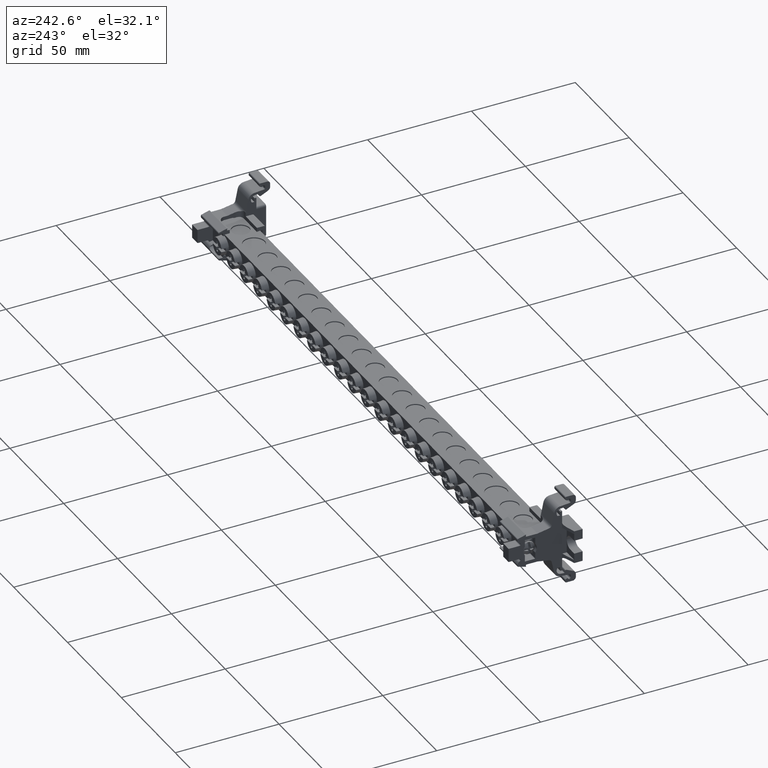
[diagram: clean part render]
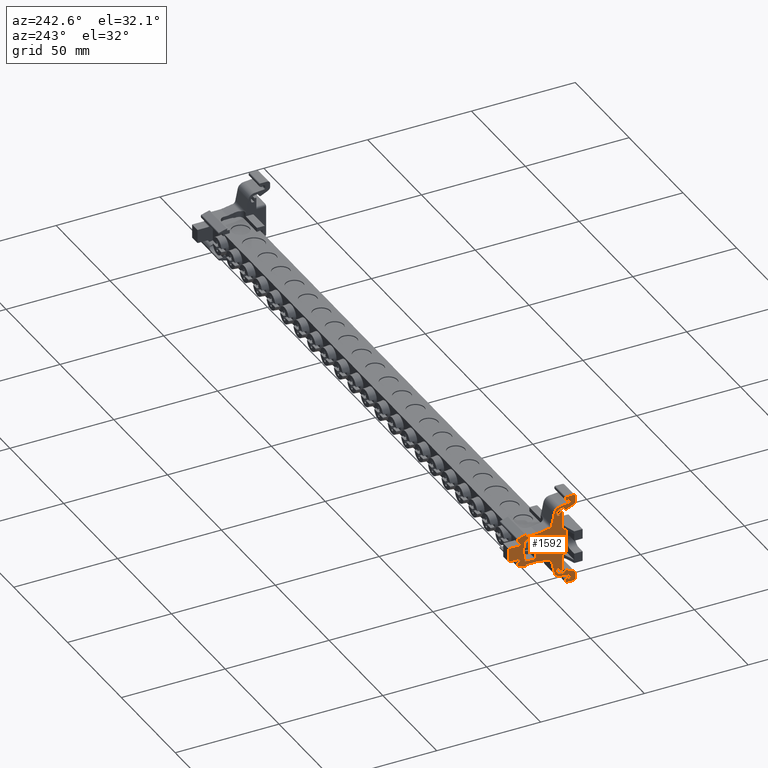
[diagram: same view with one face highlighted and labeled with its STEP entity id]
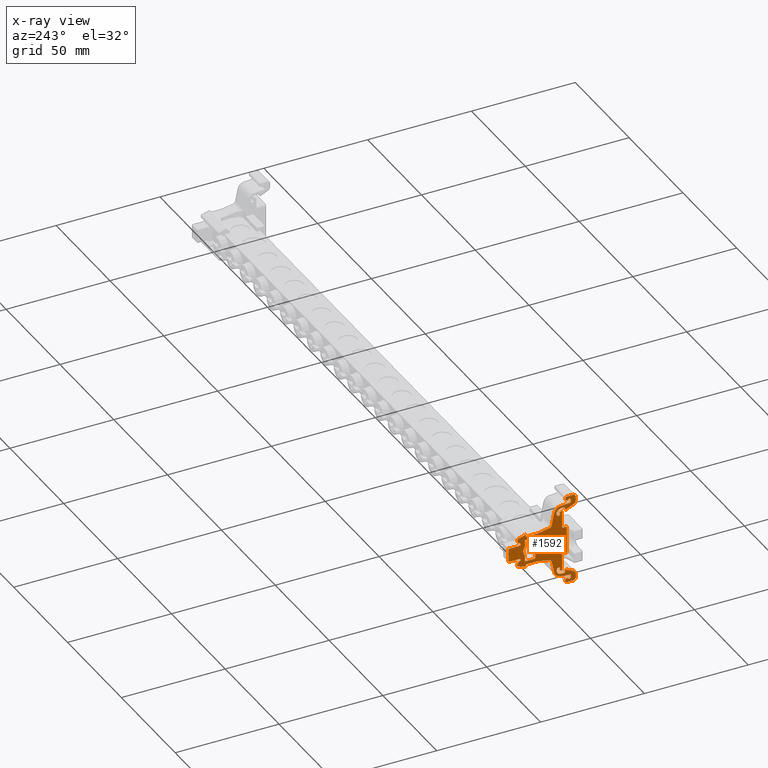
[diagram: x-ray of the same camera — body ghosted, the highlighted face saturated]
A machine part, auxiliary view. The second image highlights one B-rep face of the part: STEP entity #1592.
The next image is the same camera in x-ray: the body ghosted, the highlighted face saturated — about 0% of this face is hidden behind the body in this view.
In plain terms, the highlighted planar face has unit normal (1, -0, 0).
Its self-contained STEP definition (entity closure, byte-faithful):
#1527 = DIRECTION ( 'NONE',  ( -3.511218667417880900E-015, -3.097035688948970800E-006, 0.9999999999952042800 ) ) ;
#1592 = ADVANCED_FACE ( 'NONE', ( #24299, #24303 ), #24307, .F. ) ;
#2169 = CARTESIAN_POINT ( 'NONE',  ( -61.95269769582420600, 44.64504681959609700, 52.51835480252169900 ) ) ;
#2173 = DIRECTION ( 'NONE',  ( 6.938893903906565700E-015, 0.9999999999999851200, 1.731738814847284500E-007 ) ) ;
#2223 = DIRECTION ( 'NONE',  ( -1.000000000000000000, 7.897574987183420400E-015, -3.511194205269045200E-015 ) ) ;
#2284 = DIRECTION ( 'NONE',  ( 1.000000000000000000, -7.897574987183420400E-015, 3.511194211457205400E-015 ) ) ;
#2293 = CARTESIAN_POINT ( 'NONE',  ( -61.95269769582420600, 39.76328441857380400, 43.87217171682155500 ) ) ;
#2296 = CARTESIAN_POINT ( 'NONE',  ( -61.95269769582409900, 44.64504681959609700, 23.63694516486080100 ) ) ;
#2312 = DIRECTION ( 'NONE',  ( 6.938893903906565700E-015, 0.9999999999999851200, -1.731738814847284500E-007 ) ) ;
#2469 = DIRECTION ( 'NONE',  ( 8.387904386714116300E-015, 1.000000000000000000, 0.0000000000000000000 ) ) ;
#2495 = CARTESIAN_POINT ( 'NONE',  ( -61.95269769582400700, 59.41882648293169900, 38.07764998369120200 ) ) ;
#2501 = DIRECTION ( 'NONE',  ( 1.000000000000000000, -7.897574987183420400E-015, 3.511194208363125300E-015 ) ) ;
#2730 = AXIS2_PLACEMENT_3D ( 'NONE', #10935, #10943, #10970 ) ;
#2790 = AXIS2_PLACEMENT_3D ( 'NONE', #2495, #2501, #2469 ) ;
#4977 = VECTOR ( 'NONE', #26170, 1000.000000000000000 ) ;
#4979 = CIRCLE ( 'NONE', #5017, 0.5040000000009620100 ) ;
#4980 = CIRCLE ( 'NONE', #5024, 1.500000000000056800 ) ;
#4981 = VECTOR ( 'NONE', #26242, 1000.000000000000000 ) ;
#4982 = AXIS2_PLACEMENT_3D ( 'NONE', #26223, #26217, #26218 ) ;
#4983 = VECTOR ( 'NONE', #26254, 999.9999999999998900 ) ;
#4985 = CIRCLE ( 'NONE', #4994, 2.000000000000050200 ) ;
#4986 = VECTOR ( 'NONE', #26248, 1000.000000000000000 ) ;
#4988 = VECTOR ( 'NONE', #26195, 999.9999999999998900 ) ;
#4993 = VECTOR ( 'NONE', #26212, 1000.000000000000000 ) ;
#4994 = AXIS2_PLACEMENT_3D ( 'NONE', #26171, #26213, #26197 ) ;
#4995 = VECTOR ( 'NONE', #26192, 1000.000000000000100 ) ;
#4996 = VECTOR ( 'NONE', #26344, 1000.000000000000000 ) ;
#4998 = VECTOR ( 'NONE', #26317, 1000.000000000000000 ) ;
#4999 = CIRCLE ( 'NONE', #5019, 0.3000000000000016500 ) ;
#5000 = VECTOR ( 'NONE', #26184, 1000.000000000000100 ) ;
#5001 = VECTOR ( 'NONE', #26238, 1000.000000000000100 ) ;
#5002 = VECTOR ( 'NONE', #1527, 1000.000000000000000 ) ;
#5003 = CIRCLE ( 'NONE', #5020, 0.3000000000000016500 ) ;
#5005 = CIRCLE ( 'NONE', #5012, 0.5000000000001605400 ) ;
#5006 = VECTOR ( 'NONE', #26300, 1000.000000000000000 ) ;
#5007 = CIRCLE ( 'NONE', #5016, 0.7589987200356460600 ) ;
#5008 = CIRCLE ( 'NONE', #5015, 0.5000000000000004400 ) ;
#5009 = VECTOR ( 'NONE', #10869, 1000.000000000000000 ) ;
#5010 = AXIS2_PLACEMENT_3D ( 'NONE', #26290, #26258, #26269 ) ;
#5011 = AXIS2_PLACEMENT_3D ( 'NONE', #11045, #11116, #11143 ) ;
#5012 = AXIS2_PLACEMENT_3D ( 'NONE', #26305, #26279, #26268 ) ;
#5013 = VECTOR ( 'NONE', #26244, 1000.000000000000100 ) ;
#5014 = CIRCLE ( 'NONE', #4982, 0.5059984879067919200 ) ;
#5015 = AXIS2_PLACEMENT_3D ( 'NONE', #26345, #26335, #26311 ) ;
#5016 = AXIS2_PLACEMENT_3D ( 'NONE', #26313, #26346, #26342 ) ;
#5017 = AXIS2_PLACEMENT_3D ( 'NONE', #26237, #26221, #26222 ) ;
#5019 = AXIS2_PLACEMENT_3D ( 'NONE', #11315, #11377, #11438 ) ;
#5020 = AXIS2_PLACEMENT_3D ( 'NONE', #26173, #26210, #26172 ) ;
#5022 = VECTOR ( 'NONE', #26243, 1000.000000000000000 ) ;
#5024 = AXIS2_PLACEMENT_3D ( 'NONE', #26247, #26239, #26256 ) ;
#5028 = CIRCLE ( 'NONE', #5010, 0.3000000000002351300 ) ;
#5033 = VECTOR ( 'NONE', #26241, 1000.000000000000100 ) ;
#5036 = VECTOR ( 'NONE', #26216, 1000.000000000000000 ) ;
#5037 = VECTOR ( 'NONE', #26220, 1000.000000000000000 ) ;
#5039 = VECTOR ( 'NONE', #26389, 1000.000000000000000 ) ;
#5042 = CIRCLE ( 'NONE', #5096, 3.308999999999034700 ) ;
#5043 = AXIS2_PLACEMENT_3D ( 'NONE', #26352, #26332, #26322 ) ;
#5047 = VECTOR ( 'NONE', #26449, 1000.000000000000000 ) ;
#5050 = CIRCLE ( 'NONE', #5043, 0.5000000000000010000 ) ;
#5053 = VECTOR ( 'NONE', #26378, 1000.000000000000000 ) ;
#5063 = VECTOR ( 'NONE', #26376, 1000.000000000000000 ) ;
#5064 = VECTOR ( 'NONE', #26393, 1000.000000000000000 ) ;
#5067 = CIRCLE ( 'NONE', #5068, 3.308999999999034700 ) ;
#5068 = AXIS2_PLACEMENT_3D ( 'NONE', #26381, #26363, #26391 ) ;
#5072 = CIRCLE ( 'NONE', #5073, 0.2999999999999461400 ) ;
#5073 = AXIS2_PLACEMENT_3D ( 'NONE', #26403, #26438, #26437 ) ;
#5074 = AXIS2_PLACEMENT_3D ( 'NONE', #26390, #26371, #26396 ) ;
#5079 = AXIS2_PLACEMENT_3D ( 'NONE', #26431, #26424, #26425 ) ;
#5081 = VECTOR ( 'NONE', #26354, 1000.000000000000000 ) ;
#5082 = CIRCLE ( 'NONE', #5074, 0.5000000000000004400 ) ;
#5083 = CIRCLE ( 'NONE', #5092, 0.5000000000000143200 ) ;
#5084 = AXIS2_PLACEMENT_3D ( 'NONE', #26442, #26400, #26421 ) ;
#5089 = CIRCLE ( 'NONE', #5084, 0.5000000000000143200 ) ;
#5092 = AXIS2_PLACEMENT_3D ( 'NONE', #26414, #26407, #26419 ) ;
#5096 = AXIS2_PLACEMENT_3D ( 'NONE', #26401, #26410, #26428 ) ;
#5098 = CIRCLE ( 'NONE', #5079, 0.2999999999999461400 ) ;
#5099 = VECTOR ( 'NONE', #26338, 1000.000000000000000 ) ;
#5106 = AXIS2_PLACEMENT_3D ( 'NONE', #25641, #25606, #25644 ) ;
#5115 = CIRCLE ( 'NONE', #5152, 0.5000000000000143200 ) ;
#5126 = CIRCLE ( 'NONE', #5106, 0.5000000000000143200 ) ;
#5136 = VECTOR ( 'NONE', #25632, 1000.000000000000000 ) ;
#5142 = VECTOR ( 'NONE', #25638, 1000.000000000000000 ) ;
#5152 = AXIS2_PLACEMENT_3D ( 'NONE', #25628, #25643, #25631 ) ;
#5162 = VECTOR ( 'NONE', #25542, 1000.000000000000000 ) ;
#5227 = VECTOR ( 'NONE', #11018, 1000.000000000000100 ) ;
#5228 = VECTOR ( 'NONE', #10991, 1000.000000000000000 ) ;
#5229 = VECTOR ( 'NONE', #10984, 1000.000000000000000 ) ;
#5230 = AXIS2_PLACEMENT_3D ( 'NONE', #10995, #11000, #11028 ) ;
#5231 = VECTOR ( 'NONE', #11021, 1000.000000000000000 ) ;
#5233 = AXIS2_PLACEMENT_3D ( 'NONE', #11022, #11015, #10989 ) ;
#5235 = CIRCLE ( 'NONE', #5238, 0.5000000000000004400 ) ;
#5236 = AXIS2_PLACEMENT_3D ( 'NONE', #10980, #10958, #10982 ) ;
#5237 = CIRCLE ( 'NONE', #5257, 1.999999999999879000 ) ;
#5238 = AXIS2_PLACEMENT_3D ( 'NONE', #11001, #11008, #11013 ) ;
#5239 = CIRCLE ( 'NONE', #5250, 0.5000000000001605400 ) ;
#5240 = VECTOR ( 'NONE', #10987, 999.9999999999998900 ) ;
#5242 = AXIS2_PLACEMENT_3D ( 'NONE', #10960, #10955, #10971 ) ;
#5243 = CIRCLE ( 'NONE', #5233, 0.5059989537840523500 ) ;
#5247 = VECTOR ( 'NONE', #10981, 1000.000000000000000 ) ;
#5248 = CIRCLE ( 'NONE', #5242, 0.3000000000002351300 ) ;
#5249 = AXIS2_PLACEMENT_3D ( 'NONE', #11016, #10990, #11017 ) ;
#5250 = AXIS2_PLACEMENT_3D ( 'NONE', #10996, #11009, #11024 ) ;
#5252 = VECTOR ( 'NONE', #10964, 1000.000000000000100 ) ;
#5253 = VECTOR ( 'NONE', #11026, 1000.000000000000000 ) ;
#5254 = CIRCLE ( 'NONE', #5249, 0.5040000000009620100 ) ;
#5255 = VECTOR ( 'NONE', #11025, 1000.000000000000100 ) ;
#5256 = CIRCLE ( 'NONE', #5011, 2.000000000000191000 ) ;
#5257 = AXIS2_PLACEMENT_3D ( 'NONE', #10973, #10976, #10956 ) ;
#5258 = VECTOR ( 'NONE', #10966, 1000.000000000000100 ) ;
#5259 = CIRCLE ( 'NONE', #5236, 0.5000000000000004400 ) ;
#5260 = CIRCLE ( 'NONE', #5230, 2.000000000000050200 ) ;
#6697 = EDGE_CURVE ( 'NONE', #9226, #9258, #7587, .T. ) ;
#6716 = EDGE_CURVE ( 'NONE', #9326, #9254, #7640, .T. ) ;
#6734 = EDGE_CURVE ( 'NONE', #9280, #9242, #26552, .T. ) ;
#7074 = EDGE_CURVE ( 'NONE', #16489, #16466, #11857, .T. ) ;
#7076 = EDGE_CURVE ( 'NONE', #16354, #16335, #11932, .T. ) ;
#7081 = EDGE_CURVE ( 'NONE', #16463, #16478, #17353, .T. ) ;
#7082 = EDGE_CURVE ( 'NONE', #16478, #15857, #11900, .T. ) ;
#7083 = EDGE_CURVE ( 'NONE', #16359, #16354, #11871, .T. ) ;
#7084 = EDGE_CURVE ( 'NONE', #16361, #16378, #11919, .T. ) ;
#7085 = EDGE_CURVE ( 'NONE', #16397, #16345, #11939, .T. ) ;
#7088 = EDGE_CURVE ( 'NONE', #16373, #16357, #11979, .T. ) ;
#7089 = EDGE_CURVE ( 'NONE', #16417, #16358, #12016, .T. ) ;
#7091 = EDGE_CURVE ( 'NONE', #16345, #16361, #17314, .T. ) ;
#7092 = EDGE_CURVE ( 'NONE', #16466, #16474, #17330, .T. ) ;
#7096 = EDGE_CURVE ( 'NONE', #16403, #16418, #12022, .T. ) ;
#7097 = EDGE_CURVE ( 'NONE', #16349, #16369, #12006, .T. ) ;
#7126 = EDGE_CURVE ( 'NONE', #16418, #16477, #17414, .T. ) ;
#7127 = EDGE_CURVE ( 'NONE', #16477, #16463, #10848, .T. ) ;
#7128 = EDGE_CURVE ( 'NONE', #16444, #16441, #17397, .T. ) ;
#7129 = EDGE_CURVE ( 'NONE', #15857, #16489, #17385, .T. ) ;
#7130 = EDGE_CURVE ( 'NONE', #16378, #16403, #17402, .T. ) ;
#7135 = EDGE_CURVE ( 'NONE', #16357, #16364, #17416, .T. ) ;
#7138 = EDGE_CURVE ( 'NONE', #15825, #16496, #10892, .T. ) ;
#7139 = EDGE_CURVE ( 'NONE', #16458, #16483, #17435, .T. ) ;
#7140 = EDGE_CURVE ( 'NONE', #16421, #16434, #10820, .T. ) ;
#7141 = EDGE_CURVE ( 'NONE', #16339, #16496, #10879, .T. ) ;
#7142 = EDGE_CURVE ( 'NONE', #16484, #16419, #10870, .T. ) ;
#7144 = EDGE_CURVE ( 'NONE', #16430, #16454, #17412, .T. ) ;
#7145 = EDGE_CURVE ( 'NONE', #15830, #16494, #10858, .T. ) ;
#7146 = EDGE_CURVE ( 'NONE', #15852, #16476, #17383, .T. ) ;
#7147 = EDGE_CURVE ( 'NONE', #16454, #16448, #10888, .T. ) ;
#7148 = EDGE_CURVE ( 'NONE', #16376, #16400, #17430, .T. ) ;
#7153 = EDGE_CURVE ( 'NONE', #15881, #15865, #10925, .T. ) ;
#7155 = EDGE_CURVE ( 'NONE', #16419, #15825, #10942, .T. ) ;
#7156 = EDGE_CURVE ( 'NONE', #16453, #16421, #17395, .T. ) ;
#7157 = EDGE_CURVE ( 'NONE', #16488, #9326, #10919, .T. ) ;
#7161 = EDGE_CURVE ( 'NONE', #16486, #15830, #10915, .T. ) ;
#7162 = EDGE_CURVE ( 'NONE', #16386, #16397, #17268, .T. ) ;
#7163 = EDGE_CURVE ( 'NONE', #16500, #9226, #17227, .T. ) ;
#7164 = EDGE_CURVE ( 'NONE', #16437, #16376, #10933, .T. ) ;
#7167 = EDGE_CURVE ( 'NONE', #16453, #16346, #10948, .T. ) ;
#7169 = EDGE_CURVE ( 'NONE', #16441, #16386, #10951, .T. ) ;
#7170 = EDGE_CURVE ( 'NONE', #16501, #16488, #5248, .T. ) ;
#7171 = EDGE_CURVE ( 'NONE', #16346, #16363, #10963, .T. ) ;
#7173 = EDGE_CURVE ( 'NONE', #16448, #15881, #5237, .T. ) ;
#7174 = EDGE_CURVE ( 'NONE', #16479, #15851, #5259, .T. ) ;
#7175 = EDGE_CURVE ( 'NONE', #15828, #16337, #10975, .T. ) ;
#7176 = EDGE_CURVE ( 'NONE', #15854, #16469, #5243, .T. ) ;
#7177 = EDGE_CURVE ( 'NONE', #16462, #15868, #5239, .T. ) ;
#7178 = EDGE_CURVE ( 'NONE', #16483, #16413, #5260, .T. ) ;
#7180 = EDGE_CURVE ( 'NONE', #16405, #15879, #11011, .T. ) ;
#7181 = EDGE_CURVE ( 'NONE', #15875, #15859, #11006, .T. ) ;
#7182 = EDGE_CURVE ( 'NONE', #16358, #16349, #10992, .T. ) ;
#7184 = EDGE_CURVE ( 'NONE', #16444, #16434, #10994, .T. ) ;
#7185 = EDGE_CURVE ( 'NONE', #16467, #9258, #11027, .T. ) ;
#7186 = EDGE_CURVE ( 'NONE', #16359, #16373, #5235, .T. ) ;
#7188 = EDGE_CURVE ( 'NONE', #16474, #16501, #11019, .T. ) ;
#7189 = EDGE_CURVE ( 'NONE', #16369, #16437, #5254, .T. ) ;
#7190 = EDGE_CURVE ( 'NONE', #9254, #16367, #5256, .T. ) ;
#7191 = EDGE_CURVE ( 'NONE', #15829, #16464, #4999, .T. ) ;
#7193 = EDGE_CURVE ( 'NONE', #16383, #16335, #11941, .T. ) ;
#7194 = EDGE_CURVE ( 'NONE', #15851, #16475, #10916, .T. ) ;
#7195 = EDGE_CURVE ( 'NONE', #16417, #16363, #5003, .T. ) ;
#7196 = EDGE_CURVE ( 'NONE', #15852, #16472, #26181, .T. ) ;
#7197 = EDGE_CURVE ( 'NONE', #16469, #16492, #26209, .T. ) ;
#7198 = EDGE_CURVE ( 'NONE', #15848, #15875, #26191, .T. ) ;
#7199 = EDGE_CURVE ( 'NONE', #16490, #16468, #26189, .T. ) ;
#7200 = EDGE_CURVE ( 'NONE', #16400, #16364, #4985, .T. ) ;
#7207 = EDGE_CURVE ( 'NONE', #15828, #16482, #26188, .T. ) ;
#7209 = EDGE_CURVE ( 'NONE', #15829, #15848, #26202, .T. ) ;
#7210 = EDGE_CURVE ( 'NONE', #15884, #16472, #26219, .T. ) ;
#7211 = EDGE_CURVE ( 'NONE', #15879, #16464, #26203, .T. ) ;
#7212 = EDGE_CURVE ( 'NONE', #15850, #15854, #26230, .T. ) ;
#7213 = EDGE_CURVE ( 'NONE', #16462, #16367, #26200, .T. ) ;
#7215 = EDGE_CURVE ( 'NONE', #16492, #16465, #5014, .T. ) ;
#7216 = EDGE_CURVE ( 'NONE', #15835, #16500, #26251, .T. ) ;
#7217 = EDGE_CURVE ( 'NONE', #16494, #16482, #26253, .T. ) ;
#7218 = EDGE_CURVE ( 'NONE', #15859, #16408, #4979, .T. ) ;
#7219 = EDGE_CURVE ( 'NONE', #16405, #15884, #4980, .T. ) ;
#7222 = EDGE_CURVE ( 'NONE', #16408, #16458, #26246, .T. ) ;
#7223 = EDGE_CURVE ( 'NONE', #16337, #9310, #26240, .T. ) ;
#7224 = EDGE_CURVE ( 'NONE', #16468, #15835, #5028, .T. ) ;
#7227 = EDGE_CURVE ( 'NONE', #16467, #15844, #5005, .T. ) ;
#7233 = EDGE_CURVE ( 'NONE', #9310, #16461, #26260, .T. ) ;
#7237 = EDGE_CURVE ( 'NONE', #15844, #16486, #26326, .T. ) ;
#7239 = EDGE_CURVE ( 'NONE', #15868, #16484, #26349, .T. ) ;
#7240 = EDGE_CURVE ( 'NONE', #16410, #16413, #5008, .T. ) ;
#7241 = EDGE_CURVE ( 'NONE', #16475, #15850, #5007, .T. ) ;
#7243 = EDGE_CURVE ( 'NONE', #15922, #15906, #26314, .T. ) ;
#7246 = EDGE_CURVE ( 'NONE', #15865, #16490, #5050, .T. ) ;
#7247 = EDGE_CURVE ( 'NONE', #16461, #16339, #26327, .T. ) ;
#7254 = EDGE_CURVE ( 'NONE', #16465, #16430, #26379, .T. ) ;
#7255 = EDGE_CURVE ( 'NONE', #9242, #16411, #5067, .T. ) ;
#7257 = EDGE_CURVE ( 'NONE', #16476, #16479, #26374, .T. ) ;
#7258 = EDGE_CURVE ( 'NONE', #16443, #16410, #26380, .T. ) ;
#7259 = EDGE_CURVE ( 'NONE', #16383, #16443, #5082, .T. ) ;
#7260 = EDGE_CURVE ( 'NONE', #16412, #16432, #26397, .T. ) ;
#7267 = EDGE_CURVE ( 'NONE', #16432, #15856, #5072, .T. ) ;
#7270 = EDGE_CURVE ( 'NONE', #15839, #15927, #5083, .T. ) ;
#7273 = EDGE_CURVE ( 'NONE', #9280, #15897, #5089, .T. ) ;
#7274 = EDGE_CURVE ( 'NONE', #15919, #15927, #5042, .T. ) ;
#7276 = EDGE_CURVE ( 'NONE', #15888, #15922, #5098, .T. ) ;
#7281 = EDGE_CURVE ( 'NONE', #16470, #15888, #26432, .T. ) ;
#7296 = EDGE_CURVE ( 'NONE', #16427, #16470, #25526, .T. ) ;
#7316 = EDGE_CURVE ( 'NONE', #15906, #15919, #5126, .T. ) ;
#7317 = EDGE_CURVE ( 'NONE', #15856, #15839, #25604, .T. ) ;
#7318 = EDGE_CURVE ( 'NONE', #15897, #16412, #25633, .T. ) ;
#7326 = EDGE_CURVE ( 'NONE', #16411, #16427, #5115, .T. ) ;
#7587 = CIRCLE ( 'NONE', #7647, 2.000000000000191000 ) ;
#7596 = AXIS2_PLACEMENT_3D ( 'NONE', #2296, #2284, #2312 ) ;
#7640 = CIRCLE ( 'NONE', #7596, 2.000000000000191000 ) ;
#7647 = AXIS2_PLACEMENT_3D ( 'NONE', #2169, #2223, #2173 ) ;
#8768 = CARTESIAN_POINT ( 'NONE',  ( -61.95269769582420600, 44.96882679718355300, 51.26480513633021000 ) ) ;
#8774 = CARTESIAN_POINT ( 'NONE',  ( -61.95269769582409900, 43.96882648293844700, 23.07587375111815600 ) ) ;
#8778 = CARTESIAN_POINT ( 'NONE',  ( -61.95269769582420600, 44.87820380573430200, 52.99986615940319700 ) ) ;
#8784 = CARTESIAN_POINT ( 'NONE',  ( -61.95269769582420600, 43.96882648293850300, 44.57664888101815100 ) ) ;
#8795 = CARTESIAN_POINT ( 'NONE',  ( -61.95269769582420600, 43.05277200151805100, 54.66530018249650200 ) ) ;
#8797 = CARTESIAN_POINT ( 'NONE',  ( -61.95269769582420600, 47.79345559758349500, 53.09064989785680000 ) ) ;
#8805 = CARTESIAN_POINT ( 'NONE',  ( -61.95269769582409900, 56.91882648293359600, 35.73063464501024800 ) ) ;
#8807 = CARTESIAN_POINT ( 'NONE',  ( -61.95269769582409900, 61.32908888637999900, 46.12424998368940300 ) ) ;
#8809 = CARTESIAN_POINT ( 'NONE',  ( -61.95269769582430500, 42.24263066486794600, 58.08564427782120300 ) ) ;
#8842 = CARTESIAN_POINT ( 'NONE',  ( -61.95269769582430500, 41.28123955800519700, 57.53060234232180600 ) ) ;
#8857 = CARTESIAN_POINT ( 'NONE',  ( -61.95269769582409900, 61.44474273105949900, 45.46834443699010100 ) ) ;
#8868 = CARTESIAN_POINT ( 'NONE',  ( -61.95269769582400700, 56.91882648293359600, 33.05264998369175100 ) ) ;
#8870 = CARTESIAN_POINT ( 'NONE',  ( -61.95269769582430500, 39.76324495096660200, 56.61584379062190200 ) ) ;
#8883 = CARTESIAN_POINT ( 'NONE',  ( -61.95269769582409900, 56.81263063100379200, 40.11657719705299700 ) ) ;
#8915 = CARTESIAN_POINT ( 'NONE',  ( -61.95269769582400700, 61.91882648293060500, 35.73063464501105100 ) ) ;
#8919 = CARTESIAN_POINT ( 'NONE',  ( -61.95269769582420600, 41.89955216083065200, 53.32669673159379900 ) ) ;
#8927 = CARTESIAN_POINT ( 'NONE',  ( -61.95269769582409900, 61.56727615041510400, 46.12424998368940300 ) ) ;
#8929 = CARTESIAN_POINT ( 'NONE',  ( -61.95269769582409900, 57.21882648293359400, 43.40264998369065100 ) ) ;
#8935 = CARTESIAN_POINT ( 'NONE',  ( -61.95269769582409900, 56.91882648293359600, 40.42466532237220600 ) ) ;
#8955 = CARTESIAN_POINT ( 'NONE',  ( -61.95269769582409900, 56.91882648293359600, 43.10264998369069600 ) ) ;
#8959 = CARTESIAN_POINT ( 'NONE',  ( -61.95269769582400700, 65.08287282211169600, 45.11395462717240400 ) ) ;
#8963 = CARTESIAN_POINT ( 'NONE',  ( -61.95269769582409900, 56.81263063100379200, 36.03872277032945000 ) ) ;
#8967 = CARTESIAN_POINT ( 'NONE',  ( -61.95269769582409900, 55.87540409741299600, 45.11625012411759200 ) ) ;
#8971 = CARTESIAN_POINT ( 'NONE',  ( -61.95269769582420600, 49.02563120575629800, 47.21495201310559500 ) ) ;
#8977 = CARTESIAN_POINT ( 'NONE',  ( -61.95269769582420600, 37.36598576649569700, 19.44026953945550000 ) ) ;
#8979 = CARTESIAN_POINT ( 'NONE',  ( -61.95269769582409900, 44.96882679718355300, 24.89049483105225100 ) ) ;
#8985 = CARTESIAN_POINT ( 'NONE',  ( -61.95269769582430500, 38.52068015481065500, 54.90244741816300700 ) ) ;
#9226 = VERTEX_POINT ( 'NONE', #18680 ) ;
#9242 = VERTEX_POINT ( 'NONE', #18683 ) ;
#9254 = VERTEX_POINT ( 'NONE', #18676 ) ;
#9258 = VERTEX_POINT ( 'NONE', #18654 ) ;
#9280 = VERTEX_POINT ( 'NONE', #18649 ) ;
#9310 = VERTEX_POINT ( 'NONE', #18651 ) ;
#9326 = VERTEX_POINT ( 'NONE', #18695 ) ;
#9537 = CARTESIAN_POINT ( 'NONE',  ( -61.95269769582400700, 65.53882648293409800, 31.97530602189860400 ) ) ;
#9540 = CARTESIAN_POINT ( 'NONE',  ( -61.95269769582400700, 64.24298665697159500, 33.60369549581630400 ) ) ;
#9547 = CARTESIAN_POINT ( 'NONE',  ( -61.95269769582400700, 61.14930040515579900, 31.03904997477765100 ) ) ;
#9551 = CARTESIAN_POINT ( 'NONE',  ( -61.95269769582395700, 69.74082521647829900, 41.38664998368887600 ) ) ;
#9554 = CARTESIAN_POINT ( 'NONE',  ( -61.95269769582400700, 63.91902670048101200, 34.26864998369295300 ) ) ;
#9556 = CARTESIAN_POINT ( 'NONE',  ( -61.95269769582400700, 64.41902670048089900, 41.38664998368940200 ) ) ;
#9561 = CARTESIAN_POINT ( 'NONE',  ( -61.95269769582417800, 41.74082521647804400, 44.57664888101815100 ) ) ;
#9566 = CARTESIAN_POINT ( 'NONE',  ( -61.95269769582409900, 41.28123955800519700, 18.62469762506070100 ) ) ;
#9568 = CARTESIAN_POINT ( 'NONE',  ( -61.95269769582390800, 69.74082521647829900, 34.76864998369405400 ) ) ;
#9573 = CARTESIAN_POINT ( 'NONE',  ( -61.95269769582409900, 40.21966716099110100, 20.03755198441015000 ) ) ;
#9579 = CARTESIAN_POINT ( 'NONE',  ( -61.95269769582400700, 55.87540409741299600, 31.03904984326489800 ) ) ;
#9586 = CARTESIAN_POINT ( 'NONE',  ( -61.95269769582400700, 61.32908888637999900, 30.03104998369304800 ) ) ;
#9589 = CARTESIAN_POINT ( 'NONE',  ( -61.95269769582400700, 63.91902670048101200, 42.08361953261925200 ) ) ;
#9596 = CARTESIAN_POINT ( 'NONE',  ( -61.95269769582409900, 50.21721697526579900, 46.11394146730690100 ) ) ;
#9598 = CARTESIAN_POINT ( 'NONE',  ( -61.95269769582400700, 62.02502233486030300, 40.11657719705240100 ) ) ;
#9600 = CARTESIAN_POINT ( 'NONE',  ( -61.95269769582409900, 42.49563694983560000, 17.63144197736610200 ) ) ;
#9601 = CARTESIAN_POINT ( 'NONE',  ( -61.95269769582409900, 42.24263066486794600, 18.06965568956125200 ) ) ;
#9603 = CARTESIAN_POINT ( 'NONE',  ( -61.95269769582409900, 39.76324495096660200, 19.53945617676055200 ) ) ;
#9607 = CARTESIAN_POINT ( 'NONE',  ( -61.95269769582400700, 61.56727615041510400, 30.03104998369304800 ) ) ;
#9615 = CARTESIAN_POINT ( 'NONE',  ( -61.95269769582409900, 39.76324211793980400, 18.62470185362425200 ) ) ;
#9617 = CARTESIAN_POINT ( 'NONE',  ( -61.95269769582400700, 65.37290098875300300, 32.52935884126684800 ) ) ;
#9619 = CARTESIAN_POINT ( 'NONE',  ( -61.95269769582400700, 61.91882648293060500, 32.75264998369255000 ) ) ;
#9622 = CARTESIAN_POINT ( 'NONE',  ( -61.95269769582420600, 43.96882648293850300, 31.57865108636435300 ) ) ;
#9629 = CARTESIAN_POINT ( 'NONE',  ( -61.95269769582400700, 64.41902670048089900, 34.76864998369309500 ) ) ;
#9636 = CARTESIAN_POINT ( 'NONE',  ( -61.95269769582400700, 65.08287282211169600, 31.04134534021009600 ) ) ;
#9642 = CARTESIAN_POINT ( 'NONE',  ( -61.95269769582400700, 65.53882648293409800, 44.61224998368945200 ) ) ;
#9643 = CARTESIAN_POINT ( 'NONE',  ( -61.95269769582400700, 63.91902670048101200, 34.07168043476324500 ) ) ;
#9645 = CARTESIAN_POINT ( 'NONE',  ( -61.95269769582408500, 46.12401784536183400, 24.98329010763962500 ) ) ;
#9649 = CARTESIAN_POINT ( 'NONE',  ( -61.95269769582409900, 37.36598570617794500, 17.97537235587600100 ) ) ;
#9650 = CARTESIAN_POINT ( 'NONE',  ( -61.95269769582409900, 42.49563432372155300, 16.98136991075045200 ) ) ;
#9652 = CARTESIAN_POINT ( 'NONE',  ( -61.95269769582409900, 44.87820380573430200, 23.15543380797925000 ) ) ;
#9654 = CARTESIAN_POINT ( 'NONE',  ( -61.95269769582400700, 57.21882648293359400, 32.75264998369179600 ) ) ;
#9656 = CARTESIAN_POINT ( 'NONE',  ( -61.95269769582400700, 63.91902670048101200, 41.88664998368955100 ) ) ;
#9657 = CARTESIAN_POINT ( 'NONE',  ( -61.95269769582430500, 42.49563694983560000, 58.52385799001640300 ) ) ;
#9659 = CARTESIAN_POINT ( 'NONE',  ( -61.95269769582420600, 40.21966716099110100, 56.11774798297230400 ) ) ;
#9661 = CARTESIAN_POINT ( 'NONE',  ( -61.95269769582420600, 43.96882648293844700, 47.07664888101800200 ) ) ;
#9663 = CARTESIAN_POINT ( 'NONE',  ( -61.95269769582430500, 42.49563432372155300, 59.17393005663210200 ) ) ;
#9664 = CARTESIAN_POINT ( 'NONE',  ( -61.95269769582420600, 42.60328566554735400, 53.69303677529969600 ) ) ;
#9666 = CARTESIAN_POINT ( 'NONE',  ( -61.95269769582413500, 41.74082521647804400, 31.57865108636431700 ) ) ;
#9668 = CARTESIAN_POINT ( 'NONE',  ( -61.95269769582409900, 42.73118106645724600, 21.73677472139375100 ) ) ;
#9671 = CARTESIAN_POINT ( 'NONE',  ( -61.95269769582400700, 65.53882648293409800, 44.17999394548385100 ) ) ;
#9673 = CARTESIAN_POINT ( 'NONE',  ( -61.95269769582430500, 41.98963461062944400, 59.67992767326950300 ) ) ;
#9675 = CARTESIAN_POINT ( 'NONE',  ( -61.95269769582409900, 42.60328566554735400, 22.46226319208280100 ) ) ;
#9677 = CARTESIAN_POINT ( 'NONE',  ( -61.95269769582409900, 41.98963461062944400, 16.47537229411300400 ) ) ;
#9682 = CARTESIAN_POINT ( 'NONE',  ( -61.95269769582420600, 43.96882648293844700, 53.07942621626430200 ) ) ;
#9685 = CARTESIAN_POINT ( 'NONE',  ( -61.95269769582400700, 65.53882648293409800, 31.54304998369299900 ) ) ;
#9692 = CARTESIAN_POINT ( 'NONE',  ( -61.95269769582409900, 38.86598570617790200, 16.47537229411300400 ) ) ;
#9694 = CARTESIAN_POINT ( 'NONE',  ( -61.95269769582413500, 48.95920517769118900, 47.47134270486672100 ) ) ;
#9696 = CARTESIAN_POINT ( 'NONE',  ( -61.95269769582400700, 65.37290098875300300, 43.62594112611565600 ) ) ;
#9698 = CARTESIAN_POINT ( 'NONE',  ( -61.95269769582409900, 44.96882667606964600, 24.19111794963730200 ) ) ;
#9699 = CARTESIAN_POINT ( 'NONE',  ( -61.95269769582420600, 38.52068015481065500, 21.25285254921945500 ) ) ;
#9701 = CARTESIAN_POINT ( 'NONE',  ( -61.95269769582409900, 43.96882648293844700, 29.07865108636445200 ) ) ;
#9708 = CARTESIAN_POINT ( 'NONE',  ( -61.95269769582409900, 41.89955216083065200, 22.82860323578870200 ) ) ;
#9710 = CARTESIAN_POINT ( 'NONE',  ( -61.95269769582416300, 47.79345559758349500, 23.06465006952614900 ) ) ;
#9712 = CARTESIAN_POINT ( 'NONE',  ( -61.95269769582400700, 64.24298665697159500, 42.55160447156614400 ) ) ;
#9720 = CARTESIAN_POINT ( 'NONE',  ( -61.95269769582407100, 48.95920517769087600, 28.68395726251461800 ) ) ;
#9722 = CARTESIAN_POINT ( 'NONE',  ( -61.95269769582430500, 37.36598570617794500, 58.17992761150650000 ) ) ;
#9724 = CARTESIAN_POINT ( 'NONE',  ( -61.95269769582400700, 61.44474273105949900, 30.68695553039240300 ) ) ;
#9726 = CARTESIAN_POINT ( 'NONE',  ( -61.95269769582400700, 61.91882648293060500, 40.42466532237140300 ) ) ;
#9727 = CARTESIAN_POINT ( 'NONE',  ( -61.95269769582409900, 50.21721697526579900, 30.04135850007555000 ) ) ;
#9729 = CARTESIAN_POINT ( 'NONE',  ( -61.95269769582409900, 49.02563120575629800, 28.94034795427689800 ) ) ;
#9731 = CARTESIAN_POINT ( 'NONE',  ( -61.95269769582430500, 38.86598570617790200, 59.67992767326950300 ) ) ;
#9733 = CARTESIAN_POINT ( 'NONE',  ( -61.95269769582410600, 44.97751323073789100, 24.98329010763962900 ) ) ;
#9734 = CARTESIAN_POINT ( 'NONE',  ( -61.95269769582409900, 61.14930040515579900, 45.11624999260480000 ) ) ;
#9736 = CARTESIAN_POINT ( 'NONE',  ( -61.95269769582421300, 44.97751323073789800, 51.17200985974282200 ) ) ;
#9738 = CARTESIAN_POINT ( 'NONE',  ( -61.95269769582400700, 61.91882648293060500, 43.40264998368994800 ) ) ;
#9740 = CARTESIAN_POINT ( 'NONE',  ( -61.95269769582420600, 44.96882667606964600, 51.96418201774520900 ) ) ;
#9741 = CARTESIAN_POINT ( 'NONE',  ( -61.95269769582420600, 44.92394467542340000, 55.70617780505300200 ) ) ;
#9747 = CARTESIAN_POINT ( 'NONE',  ( -61.95269769582430500, 39.76324211793980400, 57.53059811375830200 ) ) ;
#9750 = CARTESIAN_POINT ( 'NONE',  ( -61.95269769582420600, 44.81935797948820300, 54.51074422719190700 ) ) ;
#9752 = CARTESIAN_POINT ( 'NONE',  ( -61.95269769582409900, 43.05277200151805100, 21.48999978488594900 ) ) ;
#9754 = CARTESIAN_POINT ( 'NONE',  ( -61.95269769582409900, 44.92394467542340000, 20.44912216232954800 ) ) ;
#9755 = CARTESIAN_POINT ( 'NONE',  ( -61.95269769582430500, 37.36598576649569700, 56.71503042792700500 ) ) ;
#9759 = CARTESIAN_POINT ( 'NONE',  ( -61.95269769582420600, 42.73118106645724600, 54.41852524598870400 ) ) ;
#10313 = ORIENTED_EDGE ( 'NONE', *, *, #7139, .T. ) ;
#10314 = ORIENTED_EDGE ( 'NONE', *, *, #7198, .T. ) ;
#10318 = ORIENTED_EDGE ( 'NONE', *, *, #7274, .T. ) ;
#10322 = ORIENTED_EDGE ( 'NONE', *, *, #7273, .F. ) ;
#10328 = ORIENTED_EDGE ( 'NONE', *, *, #7178, .T. ) ;
#10331 = ORIENTED_EDGE ( 'NONE', *, *, #7243, .T. ) ;
#10338 = ORIENTED_EDGE ( 'NONE', *, *, #7211, .T. ) ;
#10344 = ORIENTED_EDGE ( 'NONE', *, *, #7326, .T. ) ;
#10352 = ORIENTED_EDGE ( 'NONE', *, *, #7146, .F. ) ;
#10358 = ORIENTED_EDGE ( 'NONE', *, *, #7180, .T. ) ;
#10363 = ORIENTED_EDGE ( 'NONE', *, *, #7222, .T. ) ;
#10365 = ORIENTED_EDGE ( 'NONE', *, *, #7209, .T. ) ;
#10366 = ORIENTED_EDGE ( 'NONE', *, *, #7317, .F. ) ;
#10367 = ORIENTED_EDGE ( 'NONE', *, *, #7218, .T. ) ;
#10368 = ORIENTED_EDGE ( 'NONE', *, *, #7270, .F. ) ;
#10369 = ORIENTED_EDGE ( 'NONE', *, *, #7281, .T. ) ;
#10370 = ORIENTED_EDGE ( 'NONE', *, *, #7196, .T. ) ;
#10371 = ORIENTED_EDGE ( 'NONE', *, *, #7316, .T. ) ;
#10372 = ORIENTED_EDGE ( 'NONE', *, *, #7241, .F. ) ;
#10374 = ORIENTED_EDGE ( 'NONE', *, *, #7210, .F. ) ;
#10375 = ORIENTED_EDGE ( 'NONE', *, *, #7257, .F. ) ;
#10377 = ORIENTED_EDGE ( 'NONE', *, *, #7318, .F. ) ;
#10378 = ORIENTED_EDGE ( 'NONE', *, *, #7181, .T. ) ;
#10379 = ORIENTED_EDGE ( 'NONE', *, *, #7276, .T. ) ;
#10384 = ORIENTED_EDGE ( 'NONE', *, *, #7191, .F. ) ;
#10389 = ORIENTED_EDGE ( 'NONE', *, *, #7194, .F. ) ;
#10393 = ORIENTED_EDGE ( 'NONE', *, *, #7219, .F. ) ;
#10399 = ORIENTED_EDGE ( 'NONE', *, *, #7240, .F. ) ;
#10402 = ORIENTED_EDGE ( 'NONE', *, *, #7258, .F. ) ;
#10405 = ORIENTED_EDGE ( 'NONE', *, *, #7260, .F. ) ;
#10406 = ORIENTED_EDGE ( 'NONE', *, *, #7174, .F. ) ;
#10417 = ORIENTED_EDGE ( 'NONE', *, *, #6734, .T. ) ;
#10421 = ORIENTED_EDGE ( 'NONE', *, *, #7212, .F. ) ;
#10422 = ORIENTED_EDGE ( 'NONE', *, *, #7267, .F. ) ;
#10423 = ORIENTED_EDGE ( 'NONE', *, *, #7259, .F. ) ;
#10424 = ORIENTED_EDGE ( 'NONE', *, *, #7255, .T. ) ;
#10434 = ORIENTED_EDGE ( 'NONE', *, *, #7296, .T. ) ;
#10739 = DIRECTION ( 'NONE',  ( 5.648316949552062700E-015, 0.9611011447769712800, 0.2761966500672940500 ) ) ;
#10754 = CARTESIAN_POINT ( 'NONE',  ( -61.95269769582400700, 61.56727615041510400, 30.03104998369304800 ) ) ;
#10786 = CARTESIAN_POINT ( 'NONE',  ( -61.95269769582409900, 57.91882648293340500, 41.38664998369055300 ) ) ;
#10810 = CARTESIAN_POINT ( 'NONE',  ( -61.95269769582409900, 39.36598576649555500, 19.44026919310775300 ) ) ;
#10811 = CARTESIAN_POINT ( 'NONE',  ( -61.95269769582409900, 41.98963583581550600, 16.98137078201810400 ) ) ;
#10812 = DIRECTION ( 'NONE',  ( -1.000000000000000000, 7.897574987183420400E-015, -3.511194208363125300E-015 ) ) ;
#10813 = CARTESIAN_POINT ( 'NONE',  ( -61.95269769582409900, 44.64504681959609700, 23.63694516486080100 ) ) ;
#10814 = DIRECTION ( 'NONE',  ( 8.673617587638691200E-015, 0.9999999999999850100, -1.731738806453589800E-007 ) ) ;
#10816 = DIRECTION ( 'NONE',  ( -1.000000000000000000, 7.897574987183420400E-015, -3.511194211457205400E-015 ) ) ;
#10818 = CARTESIAN_POINT ( 'NONE',  ( -61.95269769582409900, 41.98963799605490300, 17.63144381072020300 ) ) ;
#10820 = LINE ( 'NONE', #10844, #17398 ) ;
#10826 = DIRECTION ( 'NONE',  ( -1.000000000000000000, 7.897574987183420400E-015, -3.511194211457205400E-015 ) ) ;
#10827 = DIRECTION ( 'NONE',  ( -1.000000000000000000, 7.897574987183420400E-015, -3.511194208363125300E-015 ) ) ;
#10830 = DIRECTION ( 'NONE',  ( -1.371325741291665700E-014, -1.000000000000000000, 1.371325741291665700E-014 ) ) ;
#10831 = CARTESIAN_POINT ( 'NONE',  ( -61.95269769582390000, 65.03482648293409300, 16.47537229411290100 ) ) ;
#10832 = DIRECTION ( 'NONE',  ( 6.938893903907648100E-015, 0.9999999999999850100, -1.731738814847554800E-007 ) ) ;
#10834 = DIRECTION ( 'NONE',  ( -1.371327003883342800E-014, -1.000000000000000000, 0.0000000000000000000 ) ) ;
#10838 = DIRECTION ( 'NONE',  ( 1.000000000000000000, -7.897574987183420400E-015, 3.511194208363125300E-015 ) ) ;
#10839 = DIRECTION ( 'NONE',  ( -7.897574987183431400E-015, -1.000000000000000000, 4.442812951236985500E-015 ) ) ;
#10842 = CARTESIAN_POINT ( 'NONE',  ( -61.95269769582400700, 64.41902670048101200, 34.07168043476324500 ) ) ;
#10843 = DIRECTION ( 'NONE',  ( -1.387778780781444400E-014, -1.000000000000000000, 0.0000000000000000000 ) ) ;
#10844 = CARTESIAN_POINT ( 'NONE',  ( -61.95269769582409900, 49.02563120575629800, 28.94034795427689800 ) ) ;
#10848 = LINE ( 'NONE', #10831, #17393 ) ;
#10850 = DIRECTION ( 'NONE',  ( 8.673617587638691200E-015, 0.9999999999999850100, 1.731738817295611800E-007 ) ) ;
#10851 = DIRECTION ( 'NONE',  ( -7.601343029519643700E-015, -0.9961947123350194400, 0.08715557994613965000 ) ) ;
#10852 = CARTESIAN_POINT ( 'NONE',  ( -61.95269769582400700, 64.53082648293401700, 31.97530602189860400 ) ) ;
#10856 = DIRECTION ( 'NONE',  ( 1.000000000000000000, -7.897574987183420400E-015, 3.511194208363125300E-015 ) ) ;
#10857 = DIRECTION ( 'NONE',  ( -6.883823317368127400E-015, -1.000000000000000000, 0.0000000000000000000 ) ) ;
#10858 = LINE ( 'NONE', #10883, #17428 ) ;
#10860 = DIRECTION ( 'NONE',  ( 1.000000000000000000, -7.897574987183420400E-015, 3.511194205269045200E-015 ) ) ;
#10863 = DIRECTION ( 'NONE',  ( -6.883823317368127400E-015, -1.000000000000000000, 0.0000000000000000000 ) ) ;
#10868 = DIRECTION ( 'NONE',  ( 4.461778584564200800E-015, 1.731736892445320000E-007, -0.9999999999999850100 ) ) ;
#10869 = DIRECTION ( 'NONE',  ( 7.988858113051321600E-015, 1.000000000000000000, -1.826024711554585200E-013 ) ) ;
#10870 = LINE ( 'NONE', #10880, #17417 ) ;
#10871 = DIRECTION ( 'NONE',  ( -9.251858538542962800E-015, -1.000000000000000000, 0.0000000000000000000 ) ) ;
#10874 = CARTESIAN_POINT ( 'NONE',  ( -61.95269769582409900, 43.96882648293844700, 26.61383701484054900 ) ) ;
#10875 = DIRECTION ( 'NONE',  ( -1.000000000000000000, 7.897574987183420400E-015, -3.511194208363125300E-015 ) ) ;
#10876 = DIRECTION ( 'NONE',  ( 7.022388416726250500E-015, -5.515564554018680000E-029, -1.000000000000000000 ) ) ;
#10877 = DIRECTION ( 'NONE',  ( -3.390668016491145400E-015, 5.515564554018680000E-029, 1.000000000000000000 ) ) ;
#10879 = LINE ( 'NONE', #10882, #17378 ) ;
#10880 = CARTESIAN_POINT ( 'NONE',  ( -61.95269769582409900, 44.96882667606964600, 24.19111794963730200 ) ) ;
#10881 = DIRECTION ( 'NONE',  ( 1.483399480411533800E-015, -0.2508007137987740000, -0.9680387399056019600 ) ) ;
#10882 = CARTESIAN_POINT ( 'NONE',  ( -61.95269769582409900, 43.96882648293844700, 31.57865108636429600 ) ) ;
#10883 = CARTESIAN_POINT ( 'NONE',  ( -61.95269769582420600, 44.87820380573430200, 52.99986615940319700 ) ) ;
#10884 = CARTESIAN_POINT ( 'NONE',  ( -61.95269769582420600, 44.64504681959609700, 52.51835480252169900 ) ) ;
#10885 = DIRECTION ( 'NONE',  ( 3.213426017300810600E-016, -0.08716743514127640900, -0.9961936750707121000 ) ) ;
#10886 = CARTESIAN_POINT ( 'NONE',  ( -61.95269769582430500, 37.36598549717825100, 58.27021652569899900 ) ) ;
#10887 = DIRECTION ( 'NONE',  ( 1.000000000000000000, -7.897574987183420400E-015, 3.511194208363125300E-015 ) ) ;
#10888 = LINE ( 'NONE', #10886, #17390 ) ;
#10892 = LINE ( 'NONE', #10874, #17409 ) ;
#10893 = CARTESIAN_POINT ( 'NONE',  ( -61.95269769582430500, 38.86598570617794500, 58.17992767326950300 ) ) ;
#10895 = CARTESIAN_POINT ( 'NONE',  ( -61.95269769582400700, 64.53082648293401700, 44.17999394548385100 ) ) ;
#10898 = CARTESIAN_POINT ( 'NONE',  ( -61.95269769582409900, 44.87820380573430200, 23.15543380797925000 ) ) ;
#10899 = DIRECTION ( 'NONE',  ( 1.000000000000000000, -7.897574987183420400E-015, 3.511194208363125300E-015 ) ) ;
#10900 = DIRECTION ( 'NONE',  ( 9.251858538542620400E-015, 1.000000000000000000, 0.0000000000000000000 ) ) ;
#10908 = CARTESIAN_POINT ( 'NONE',  ( -61.95269769582409900, 50.47768931561490300, 28.56414688357875100 ) ) ;
#10909 = DIRECTION ( 'NONE',  ( -6.989302694452813400E-015, -0.9961947123350194400, -0.08715557994613965000 ) ) ;
#10910 = CARTESIAN_POINT ( 'NONE',  ( -61.95269769582420600, 44.96882667606964600, 51.96418201774520900 ) ) ;
#10914 = CARTESIAN_POINT ( 'NONE',  ( -61.95269769582400700, 65.53882648293409800, 31.54304998369299900 ) ) ;
#10915 = LINE ( 'NONE', #10910, #17391 ) ;
#10916 = LINE ( 'NONE', #2293, #5002 ) ;
#10919 = LINE ( 'NONE', #10930, #17450 ) ;
#10923 = DIRECTION ( 'NONE',  ( -6.674316322902441600E-015, -0.08716743514127640900, 0.9961936750707121000 ) ) ;
#10925 = LINE ( 'NONE', #10934, #17400 ) ;
#10926 = CARTESIAN_POINT ( 'NONE',  ( -61.95269769582409900, 40.26324495096420000, 19.53945462824265200 ) ) ;
#10927 = DIRECTION ( 'NONE',  ( 1.000000000000000000, -7.897574987183420400E-015, 3.511194208363125300E-015 ) ) ;
#10928 = DIRECTION ( 'NONE',  ( -1.387778780781444400E-014, -1.000000000000000000, 0.0000000000000000000 ) ) ;
#10929 = DIRECTION ( 'NONE',  ( 9.305859775338997300E-015, 0.9062916780557625000, -0.4226528058428927800 ) ) ;
#10930 = CARTESIAN_POINT ( 'NONE',  ( -61.95269769582409900, 43.05277200151805100, 21.48999978488594900 ) ) ;
#10933 = LINE ( 'NONE', #10914, #17473 ) ;
#10934 = CARTESIAN_POINT ( 'NONE',  ( -61.95269769582430500, 38.52068015481065500, 54.90244741816300700 ) ) ;
#10935 = CARTESIAN_POINT ( 'NONE',  ( -61.95269769582420600, 44.64504681959609700, 52.51835480252169900 ) ) ;
#10941 = DIRECTION ( 'NONE',  ( 7.213776322300801300E-015, 0.9961947123350202200, 0.08715557994613090700 ) ) ;
#10942 = LINE ( 'NONE', #10898, #17404 ) ;
#10943 = DIRECTION ( 'NONE',  ( -1.000000000000000000, 7.897574987183420400E-015, -3.511194205269045200E-015 ) ) ;
#10948 = LINE ( 'NONE', #10968, #5258 ) ;
#10951 = LINE ( 'NONE', #10974, #5229 ) ;
#10952 = CARTESIAN_POINT ( 'NONE',  ( -61.95269769582400700, 55.87540409741299600, 31.03904984326489800 ) ) ;
#10955 = DIRECTION ( 'NONE',  ( 1.000000000000000000, -7.897574987183420400E-015, 3.511194211457205400E-015 ) ) ;
#10956 = DIRECTION ( 'NONE',  ( 6.938893903907648100E-015, 0.9999999999999850100, 1.731738814847554800E-007 ) ) ;
#10958 = DIRECTION ( 'NONE',  ( -1.000000000000000000, 7.897574987183420400E-015, -3.511194208363125300E-015 ) ) ;
#10960 = CARTESIAN_POINT ( 'NONE',  ( -61.95269769582409900, 43.02662532753470300, 21.78885819858700000 ) ) ;
#10961 = DIRECTION ( 'NONE',  ( -7.022388416726250500E-015, -9.631644151525060000E-014, 1.000000000000000000 ) ) ;
#10963 = LINE ( 'NONE', #10952, #5252 ) ;
#10964 = DIRECTION ( 'NONE',  ( 7.393045590816347700E-015, 0.9999999999999996700, 2.493654252407339300E-008 ) ) ;
#10966 = DIRECTION ( 'NONE',  ( 7.148118829929812800E-015, 0.9848077443312180900, 0.1736482268992634900 ) ) ;
#10968 = CARTESIAN_POINT ( 'NONE',  ( -61.95269769582409900, 50.15875241932420200, 30.03104961843430200 ) ) ;
#10970 = DIRECTION ( 'NONE',  ( 6.938893903906565700E-015, 0.9999999999999851200, 1.731738814847284500E-007 ) ) ;
#10971 = DIRECTION ( 'NONE',  ( 0.0000000000000000000, 0.9999999999999850100, -1.731738826410915800E-007 ) ) ;
#10973 = CARTESIAN_POINT ( 'NONE',  ( -61.95269769582430500, 39.36598576649555500, 56.71503077427470200 ) ) ;
#10974 = CARTESIAN_POINT ( 'NONE',  ( -61.95269769582409900, 44.92394467542340000, 20.44912216232954800 ) ) ;
#10975 = LINE ( 'NONE', #10977, #5247 ) ;
#10976 = DIRECTION ( 'NONE',  ( 1.000000000000000000, -7.897574987183420400E-015, 3.511194205269045200E-015 ) ) ;
#10977 = CARTESIAN_POINT ( 'NONE',  ( -61.95269769582419200, 41.74082521647790900, 44.57664888101815100 ) ) ;
#10980 = CARTESIAN_POINT ( 'NONE',  ( -61.95269769582430500, 40.26324495096420000, 56.61584533913980300 ) ) ;
#10981 = DIRECTION ( 'NONE',  ( -7.897574987183420400E-015, -1.000000000000000000, 0.0000000000000000000 ) ) ;
#10982 = DIRECTION ( 'NONE',  ( -1.387778780781444400E-014, -1.000000000000000000, 0.0000000000000000000 ) ) ;
#10984 = DIRECTION ( 'NONE',  ( -7.116841814207228300E-015, -0.9961947123350145500, -0.08715557994619575800 ) ) ;
#10987 = DIRECTION ( 'NONE',  ( 6.915746406521249100E-015, 0.1736115906440594800, -0.9848142035907279100 ) ) ;
#10988 = CARTESIAN_POINT ( 'NONE',  ( -61.95269769582409900, 42.60328566554735400, 22.46226319208280100 ) ) ;
#10989 = DIRECTION ( 'NONE',  ( -1.371325741291665700E-014, -1.000000000000000000, 0.0000000000000000000 ) ) ;
#10990 = DIRECTION ( 'NONE',  ( 1.000000000000000000, -7.897574987183420400E-015, 3.511194208363125300E-015 ) ) ;
#10991 = DIRECTION ( 'NONE',  ( 7.587877105723223200E-015, 0.9611011447769712800, -0.2761966500672940500 ) ) ;
#10992 = LINE ( 'NONE', #10998, #5253 ) ;
#10993 = CARTESIAN_POINT ( 'NONE',  ( -61.95269769582402100, 65.03482648293409300, 51.17200985974282900 ) ) ;
#10994 = LINE ( 'NONE', #11012, #5255 ) ;
#10995 = CARTESIAN_POINT ( 'NONE',  ( -61.95269769582400700, 63.53882648293410500, 44.42354422735414200 ) ) ;
#10996 = CARTESIAN_POINT ( 'NONE',  ( -61.95269769582409900, 45.46882679718349600, 24.89049474446530000 ) ) ;
#10998 = CARTESIAN_POINT ( 'NONE',  ( -61.95269769582400700, 61.32908888637999900, 30.03104998369304800 ) ) ;
#11000 = DIRECTION ( 'NONE',  ( -1.000000000000000000, 7.897574987183420400E-015, -3.511194208363125300E-015 ) ) ;
#11001 = CARTESIAN_POINT ( 'NONE',  ( -61.95269769582400700, 64.41902670048101200, 34.26864998369295300 ) ) ;
#11006 = LINE ( 'NONE', #11030, #5228 ) ;
#11008 = DIRECTION ( 'NONE',  ( 1.000000000000000000, -7.897574987183420400E-015, 3.511194208363125300E-015 ) ) ;
#11009 = DIRECTION ( 'NONE',  ( 1.000000000000000000, -7.897574987183420400E-015, 3.511194211457205400E-015 ) ) ;
#11011 = LINE ( 'NONE', #11023, #5227 ) ;
#11012 = CARTESIAN_POINT ( 'NONE',  ( -61.95269769582414200, 48.88003733662795000, 28.30234149671946800 ) ) ;
#11013 = DIRECTION ( 'NONE',  ( -1.387778780781444400E-014, -1.000000000000000000, 0.0000000000000000000 ) ) ;
#11015 = DIRECTION ( 'NONE',  ( 1.000000000000000000, -7.897574987183420400E-015, 3.511194208363125300E-015 ) ) ;
#11016 = CARTESIAN_POINT ( 'NONE',  ( -61.95269769582400700, 65.03482648293409300, 31.54304998369324800 ) ) ;
#11017 = DIRECTION ( 'NONE',  ( -1.376764663471028600E-014, -1.000000000000000000, 0.0000000000000000000 ) ) ;
#11018 = DIRECTION ( 'NONE',  ( 8.367544127092249600E-015, 0.9848077443312180900, -0.1736482268992634900 ) ) ;
#11019 = LINE ( 'NONE', #10988, #5240 ) ;
#11021 = DIRECTION ( 'NONE',  ( 7.897574987183420400E-015, 1.000000000000000000, 6.526769278752017400E-031 ) ) ;
#11022 = CARTESIAN_POINT ( 'NONE',  ( -61.95269769582430500, 41.98963799605490300, 58.52385615666229800 ) ) ;
#11023 = CARTESIAN_POINT ( 'NONE',  ( -61.95269769582409900, 50.15875241932420200, 46.12425034894820200 ) ) ;
#11024 = DIRECTION ( 'NONE',  ( 1.387778780781000100E-014, 0.9999999999999851200, -1.731738780152424300E-007 ) ) ;
#11025 = DIRECTION ( 'NONE',  ( 3.891541569136056700E-015, 0.2031293010246979800, 0.9791519223620088800 ) ) ;
#11026 = DIRECTION ( 'NONE',  ( 2.913209458120440400E-014, 1.000000000000000000, 1.494212380018366000E-028 ) ) ;
#11027 = LINE ( 'NONE', #10993, #5231 ) ;
#11028 = DIRECTION ( 'NONE',  ( -6.938893903907054000E-015, -1.000000000000000000, 0.0000000000000000000 ) ) ;
#11030 = CARTESIAN_POINT ( 'NONE',  ( -61.95269769582409900, 61.56727615041510400, 46.12424998368940300 ) ) ;
#11045 = CARTESIAN_POINT ( 'NONE',  ( -61.95269769582409900, 44.64504681959609700, 23.63694516486080100 ) ) ;
#11116 = DIRECTION ( 'NONE',  ( 1.000000000000000000, -7.897574987183420400E-015, 3.511194211457205400E-015 ) ) ;
#11143 = DIRECTION ( 'NONE',  ( 6.938893903906565700E-015, 0.9999999999999851200, -1.731738814847284500E-007 ) ) ;
#11315 = CARTESIAN_POINT ( 'NONE',  ( -61.95269769582409900, 61.14930040515579900, 45.41624998368999400 ) ) ;
#11377 = DIRECTION ( 'NONE',  ( -1.000000000000000000, 7.897574987183420400E-015, -3.511194208363125300E-015 ) ) ;
#11438 = DIRECTION ( 'NONE',  ( 0.0000000000000000000, -1.000000000000000000, 0.0000000000000000000 ) ) ;
#11857 = LINE ( 'NONE', #11910, #17333 ) ;
#11859 = DIRECTION ( 'NONE',  ( 6.337827607291014100E-015, 0.9062916780557625000, 0.4226528058428927800 ) ) ;
#11871 = LINE ( 'NONE', #11929, #17349 ) ;
#11873 = CARTESIAN_POINT ( 'NONE',  ( -61.95269769582409900, 37.36598549717825100, 17.88508344168350200 ) ) ;
#11876 = DIRECTION ( 'NONE',  ( -3.277706198717294900E-015, 0.0000000000000000000, 1.000000000000000000 ) ) ;
#11879 = DIRECTION ( 'NONE',  ( -1.000000000000000000, 7.897574987183420400E-015, -3.511194208363125300E-015 ) ) ;
#11882 = DIRECTION ( 'NONE',  ( 3.511169749274695900E-015, -3.097035688948970800E-006, -0.9999999999952042800 ) ) ;
#11884 = CARTESIAN_POINT ( 'NONE',  ( -61.95269769582409900, 38.86598570617794500, 17.97537229411300100 ) ) ;
#11891 = CARTESIAN_POINT ( 'NONE',  ( -61.95269769582391500, 69.74082521647829900, 29.71168627990643100 ) ) ;
#11900 = LINE ( 'NONE', #11873, #17363 ) ;
#11901 = DIRECTION ( 'NONE',  ( -9.251858538542962800E-015, -1.000000000000000000, 0.0000000000000000000 ) ) ;
#11905 = DIRECTION ( 'NONE',  ( -2.560609832161949900E-015, 1.731736892445320000E-007, 0.9999999999999850100 ) ) ;
#11910 = CARTESIAN_POINT ( 'NONE',  ( -61.95269769582420600, 38.52068015481065500, 21.25285254921945500 ) ) ;
#11914 = CARTESIAN_POINT ( 'NONE',  ( -61.95269769582420600, 39.76328441857380400, 32.28312825056094900 ) ) ;
#11916 = DIRECTION ( 'NONE',  ( 7.988858113050031100E-015, 1.000000000000000000, 1.826024711554585200E-013 ) ) ;
#11919 = LINE ( 'NONE', #11921, #17340 ) ;
#11921 = CARTESIAN_POINT ( 'NONE',  ( -61.95269769582400700, 53.18256331680429800, 11.75368152460436000 ) ) ;
#11923 = DIRECTION ( 'NONE',  ( 8.595110051843501000E-015, 0.8660322215516831300, -0.4999881910948060800 ) ) ;
#11929 = CARTESIAN_POINT ( 'NONE',  ( -61.95269769582400700, 57.91882648293340500, 34.76864998369189400 ) ) ;
#11932 = LINE ( 'NONE', #11891, #17345 ) ;
#11939 = LINE ( 'NONE', #11914, #17320 ) ;
#11941 = LINE ( 'NONE', #10786, #5009 ) ;
#11953 = DIRECTION ( 'NONE',  ( 1.387778780781442800E-014, 0.9999999999999850100, -1.731738780152977000E-007 ) ) ;
#11968 = DIRECTION ( 'NONE',  ( -9.142168123262904200E-015, -1.000000000000000000, 0.0000000000000000000 ) ) ;
#11971 = DIRECTION ( 'NONE',  ( -1.000000000000000000, 7.897574987183420400E-015, -3.511194211457205400E-015 ) ) ;
#11972 = DIRECTION ( 'NONE',  ( 3.511162304284601000E-015, -4.039727375448119700E-006, -0.9999999999918401900 ) ) ;
#11979 = LINE ( 'NONE', #12024, #17366 ) ;
#11989 = CARTESIAN_POINT ( 'NONE',  ( -61.95269769582420600, 42.49569613870539800, 32.28314103563514000 ) ) ;
#11996 = CARTESIAN_POINT ( 'NONE',  ( -61.95269769582409900, 40.52224083797249700, 18.62469973934245000 ) ) ;
#11999 = DIRECTION ( 'NONE',  ( 1.000000000000000000, -7.897574987183420400E-015, 3.511194208363125300E-015 ) ) ;
#12006 = LINE ( 'NONE', #10754, #17327 ) ;
#12009 = CARTESIAN_POINT ( 'NONE',  ( -61.95269769582409900, 42.11087856375199600, 22.37545739676075100 ) ) ;
#12014 = CARTESIAN_POINT ( 'NONE',  ( -61.95269769582400700, 61.50682648293420100, 31.03904998369310100 ) ) ;
#12016 = LINE ( 'NONE', #12014, #17371 ) ;
#12022 = LINE ( 'NONE', #11989, #17365 ) ;
#12024 = CARTESIAN_POINT ( 'NONE',  ( -61.95269769582400700, 63.91902670048101200, 33.70043375959469500 ) ) ;
#12028 = DIRECTION ( 'NONE',  ( 3.059313742856710000E-015, -5.515564554018680000E-029, -1.000000000000000000 ) ) ;
#12034 = DIRECTION ( 'NONE',  ( 1.364599841449755100E-016, -0.1736481776669389400, -0.9848077530122064700 ) ) ;
#15825 = VERTEX_POINT ( 'NONE', #8774 ) ;
#15828 = VERTEX_POINT ( 'NONE', #8784 ) ;
#15829 = VERTEX_POINT ( 'NONE', #8857 ) ;
#15830 = VERTEX_POINT ( 'NONE', #8778 ) ;
#15835 = VERTEX_POINT ( 'NONE', #8795 ) ;
#15839 = VERTEX_POINT ( 'NONE', #8805 ) ;
#15844 = VERTEX_POINT ( 'NONE', #8768 ) ;
#15848 = VERTEX_POINT ( 'NONE', #8807 ) ;
#15850 = VERTEX_POINT ( 'NONE', #8842 ) ;
#15851 = VERTEX_POINT ( 'NONE', #8870 ) ;
#15852 = VERTEX_POINT ( 'NONE', #8797 ) ;
#15854 = VERTEX_POINT ( 'NONE', #8809 ) ;
#15856 = VERTEX_POINT ( 'NONE', #8868 ) ;
#15857 = VERTEX_POINT ( 'NONE', #8977 ) ;
#15859 = VERTEX_POINT ( 'NONE', #8959 ) ;
#15865 = VERTEX_POINT ( 'NONE', #8919 ) ;
#15868 = VERTEX_POINT ( 'NONE', #8979 ) ;
#15875 = VERTEX_POINT ( 'NONE', #8927 ) ;
#15879 = VERTEX_POINT ( 'NONE', #8967 ) ;
#15881 = VERTEX_POINT ( 'NONE', #8985 ) ;
#15884 = VERTEX_POINT ( 'NONE', #8971 ) ;
#15888 = VERTEX_POINT ( 'NONE', #8929 ) ;
#15897 = VERTEX_POINT ( 'NONE', #8915 ) ;
#15906 = VERTEX_POINT ( 'NONE', #8935 ) ;
#15919 = VERTEX_POINT ( 'NONE', #8883 ) ;
#15922 = VERTEX_POINT ( 'NONE', #8955 ) ;
#15927 = VERTEX_POINT ( 'NONE', #8963 ) ;
#16335 = VERTEX_POINT ( 'NONE', #9551 ) ;
#16337 = VERTEX_POINT ( 'NONE', #9561 ) ;
#16339 = VERTEX_POINT ( 'NONE', #9622 ) ;
#16345 = VERTEX_POINT ( 'NONE', #9615 ) ;
#16346 = VERTEX_POINT ( 'NONE', #9579 ) ;
#16349 = VERTEX_POINT ( 'NONE', #9607 ) ;
#16354 = VERTEX_POINT ( 'NONE', #9568 ) ;
#16357 = VERTEX_POINT ( 'NONE', #9643 ) ;
#16358 = VERTEX_POINT ( 'NONE', #9586 ) ;
#16359 = VERTEX_POINT ( 'NONE', #9629 ) ;
#16361 = VERTEX_POINT ( 'NONE', #9566 ) ;
#16363 = VERTEX_POINT ( 'NONE', #9547 ) ;
#16364 = VERTEX_POINT ( 'NONE', #9540 ) ;
#16367 = VERTEX_POINT ( 'NONE', #9645 ) ;
#16369 = VERTEX_POINT ( 'NONE', #9636 ) ;
#16373 = VERTEX_POINT ( 'NONE', #9554 ) ;
#16376 = VERTEX_POINT ( 'NONE', #9537 ) ;
#16378 = VERTEX_POINT ( 'NONE', #9601 ) ;
#16383 = VERTEX_POINT ( 'NONE', #9556 ) ;
#16386 = VERTEX_POINT ( 'NONE', #9573 ) ;
#16397 = VERTEX_POINT ( 'NONE', #9603 ) ;
#16400 = VERTEX_POINT ( 'NONE', #9617 ) ;
#16403 = VERTEX_POINT ( 'NONE', #9600 ) ;
#16405 = VERTEX_POINT ( 'NONE', #9596 ) ;
#16408 = VERTEX_POINT ( 'NONE', #9642 ) ;
#16410 = VERTEX_POINT ( 'NONE', #9589 ) ;
#16411 = VERTEX_POINT ( 'NONE', #9598 ) ;
#16412 = VERTEX_POINT ( 'NONE', #9619 ) ;
#16413 = VERTEX_POINT ( 'NONE', #9712 ) ;
#16417 = VERTEX_POINT ( 'NONE', #9724 ) ;
#16418 = VERTEX_POINT ( 'NONE', #9650 ) ;
#16419 = VERTEX_POINT ( 'NONE', #9652 ) ;
#16421 = VERTEX_POINT ( 'NONE', #9729 ) ;
#16427 = VERTEX_POINT ( 'NONE', #9726 ) ;
#16430 = VERTEX_POINT ( 'NONE', #9731 ) ;
#16432 = VERTEX_POINT ( 'NONE', #9654 ) ;
#16434 = VERTEX_POINT ( 'NONE', #9720 ) ;
#16437 = VERTEX_POINT ( 'NONE', #9685 ) ;
#16441 = VERTEX_POINT ( 'NONE', #9754 ) ;
#16443 = VERTEX_POINT ( 'NONE', #9656 ) ;
#16444 = VERTEX_POINT ( 'NONE', #9710 ) ;
#16448 = VERTEX_POINT ( 'NONE', #9755 ) ;
#16453 = VERTEX_POINT ( 'NONE', #9727 ) ;
#16454 = VERTEX_POINT ( 'NONE', #9722 ) ;
#16458 = VERTEX_POINT ( 'NONE', #9671 ) ;
#16461 = VERTEX_POINT ( 'NONE', #9666 ) ;
#16462 = VERTEX_POINT ( 'NONE', #9733 ) ;
#16463 = VERTEX_POINT ( 'NONE', #9692 ) ;
#16464 = VERTEX_POINT ( 'NONE', #9734 ) ;
#16465 = VERTEX_POINT ( 'NONE', #9673 ) ;
#16466 = VERTEX_POINT ( 'NONE', #9708 ) ;
#16467 = VERTEX_POINT ( 'NONE', #9736 ) ;
#16468 = VERTEX_POINT ( 'NONE', #9759 ) ;
#16469 = VERTEX_POINT ( 'NONE', #9657 ) ;
#16470 = VERTEX_POINT ( 'NONE', #9738 ) ;
#16472 = VERTEX_POINT ( 'NONE', #9694 ) ;
#16474 = VERTEX_POINT ( 'NONE', #9675 ) ;
#16475 = VERTEX_POINT ( 'NONE', #9747 ) ;
#16476 = VERTEX_POINT ( 'NONE', #9741 ) ;
#16477 = VERTEX_POINT ( 'NONE', #9677 ) ;
#16478 = VERTEX_POINT ( 'NONE', #9649 ) ;
#16479 = VERTEX_POINT ( 'NONE', #9659 ) ;
#16482 = VERTEX_POINT ( 'NONE', #9661 ) ;
#16483 = VERTEX_POINT ( 'NONE', #9696 ) ;
#16484 = VERTEX_POINT ( 'NONE', #9698 ) ;
#16486 = VERTEX_POINT ( 'NONE', #9740 ) ;
#16488 = VERTEX_POINT ( 'NONE', #9752 ) ;
#16489 = VERTEX_POINT ( 'NONE', #9699 ) ;
#16490 = VERTEX_POINT ( 'NONE', #9664 ) ;
#16492 = VERTEX_POINT ( 'NONE', #9663 ) ;
#16494 = VERTEX_POINT ( 'NONE', #9682 ) ;
#16496 = VERTEX_POINT ( 'NONE', #9701 ) ;
#16500 = VERTEX_POINT ( 'NONE', #9750 ) ;
#16501 = VERTEX_POINT ( 'NONE', #9668 ) ;
#17227 = CIRCLE ( 'NONE', #2730, 2.000000000000191000 ) ;
#17268 = CIRCLE ( 'NONE', #17336, 0.5000000000000004400 ) ;
#17314 = CIRCLE ( 'NONE', #17347, 0.7589987200356460600 ) ;
#17320 = VECTOR ( 'NONE', #11882, 1000.000000000000000 ) ;
#17327 = VECTOR ( 'NONE', #10739, 1000.000000000000000 ) ;
#17330 = CIRCLE ( 'NONE', #17367, 0.5000000000000010000 ) ;
#17333 = VECTOR ( 'NONE', #11859, 1000.000000000000000 ) ;
#17336 = AXIS2_PLACEMENT_3D ( 'NONE', #10926, #10927, #10928 ) ;
#17340 = VECTOR ( 'NONE', #11923, 1000.000000000000100 ) ;
#17341 = AXIS2_PLACEMENT_3D ( 'NONE', #11884, #11879, #11901 ) ;
#17345 = VECTOR ( 'NONE', #11876, 1000.000000000000000 ) ;
#17347 = AXIS2_PLACEMENT_3D ( 'NONE', #11996, #11999, #11968 ) ;
#17349 = VECTOR ( 'NONE', #11916, 1000.000000000000000 ) ;
#17353 = CIRCLE ( 'NONE', #17341, 1.500000000000001300 ) ;
#17363 = VECTOR ( 'NONE', #11905, 1000.000000000000000 ) ;
#17365 = VECTOR ( 'NONE', #11972, 1000.000000000000100 ) ;
#17366 = VECTOR ( 'NONE', #12028, 1000.000000000000000 ) ;
#17367 = AXIS2_PLACEMENT_3D ( 'NONE', #12009, #11971, #11953 ) ;
#17371 = VECTOR ( 'NONE', #12034, 1000.000000000000100 ) ;
#17377 = AXIS2_PLACEMENT_3D ( 'NONE', #10842, #10838, #10843 ) ;
#17378 = VECTOR ( 'NONE', #10876, 1000.000000000000000 ) ;
#17380 = AXIS2_PLACEMENT_3D ( 'NONE', #10811, #10812, #10834 ) ;
#17383 = CIRCLE ( 'NONE', #17388, 3.199999923352062800 ) ;
#17385 = CIRCLE ( 'NONE', #17440, 1.999999999999879000 ) ;
#17387 = AXIS2_PLACEMENT_3D ( 'NONE', #10893, #10887, #10871 ) ;
#17388 = AXIS2_PLACEMENT_3D ( 'NONE', #10884, #10860, #10850 ) ;
#17390 = VECTOR ( 'NONE', #10868, 1000.000000000000000 ) ;
#17391 = VECTOR ( 'NONE', #10923, 999.9999999999998900 ) ;
#17393 = VECTOR ( 'NONE', #10839, 1000.000000000000000 ) ;
#17395 = CIRCLE ( 'NONE', #17454, 1.500000000000056800 ) ;
#17397 = CIRCLE ( 'NONE', #17419, 3.199999923352062800 ) ;
#17398 = VECTOR ( 'NONE', #10881, 999.9999999999998900 ) ;
#17400 = VECTOR ( 'NONE', #10929, 1000.000000000000000 ) ;
#17402 = CIRCLE ( 'NONE', #17433, 0.5059989537840523500 ) ;
#17404 = VECTOR ( 'NONE', #10909, 1000.000000000000000 ) ;
#17409 = VECTOR ( 'NONE', #10877, 1000.000000000000000 ) ;
#17412 = CIRCLE ( 'NONE', #17387, 1.500000000000001300 ) ;
#17414 = CIRCLE ( 'NONE', #17380, 0.5059984879067919200 ) ;
#17416 = CIRCLE ( 'NONE', #17377, 0.5000000000000004400 ) ;
#17417 = VECTOR ( 'NONE', #10885, 999.9999999999998900 ) ;
#17419 = AXIS2_PLACEMENT_3D ( 'NONE', #10813, #10826, #10814 ) ;
#17425 = AXIS2_PLACEMENT_3D ( 'NONE', #10895, #10875, #10863 ) ;
#17428 = VECTOR ( 'NONE', #10851, 1000.000000000000000 ) ;
#17430 = CIRCLE ( 'NONE', #17437, 1.008000000000022700 ) ;
#17433 = AXIS2_PLACEMENT_3D ( 'NONE', #10818, #10827, #10830 ) ;
#17435 = CIRCLE ( 'NONE', #17425, 1.008000000000022700 ) ;
#17437 = AXIS2_PLACEMENT_3D ( 'NONE', #10852, #10856, #10857 ) ;
#17440 = AXIS2_PLACEMENT_3D ( 'NONE', #10810, #10816, #10832 ) ;
#17450 = VECTOR ( 'NONE', #10941, 1000.000000000000000 ) ;
#17454 = AXIS2_PLACEMENT_3D ( 'NONE', #10908, #10899, #10900 ) ;
#17473 = VECTOR ( 'NONE', #10961, 1000.000000000000000 ) ;
#18649 = CARTESIAN_POINT ( 'NONE',  ( -61.95269769582400700, 62.02502233486030300, 36.03872277033010400 ) ) ;
#18651 = CARTESIAN_POINT ( 'NONE',  ( -61.95269769582416300, 41.74082521647812200, 38.07764998369126600 ) ) ;
#18654 = CARTESIAN_POINT ( 'NONE',  ( -61.95269769582417000, 46.12401784536178400, 51.17200985974282900 ) ) ;
#18676 = CARTESIAN_POINT ( 'NONE',  ( -61.95269769582408500, 46.64504681959626000, 23.63694481851305800 ) ) ;
#18680 = CARTESIAN_POINT ( 'NONE',  ( -61.95269769582419200, 46.64504681959626000, 52.51835514886948900 ) ) ;
#18683 = CARTESIAN_POINT ( 'NONE',  ( -61.95269769582397900, 62.72782648293073700, 38.07764998369120200 ) ) ;
#18695 = CARTESIAN_POINT ( 'NONE',  ( -61.95269769582409900, 44.81935797948820300, 21.64455574019060400 ) ) ;
#19454 = ORIENTED_EDGE ( 'NONE', *, *, #7089, .F. ) ;
#19455 = ORIENTED_EDGE ( 'NONE', *, *, #7169, .T. ) ;
#19456 = ORIENTED_EDGE ( 'NONE', *, *, #7239, .T. ) ;
#19459 = ORIENTED_EDGE ( 'NONE', *, *, #7171, .F. ) ;
#19472 = ORIENTED_EDGE ( 'NONE', *, *, #7207, .T. ) ;
#19478 = ORIENTED_EDGE ( 'NONE', *, *, #7140, .T. ) ;
#19479 = ORIENTED_EDGE ( 'NONE', *, *, #7182, .F. ) ;
#19480 = ORIENTED_EDGE ( 'NONE', *, *, #7097, .F. ) ;
#19482 = ORIENTED_EDGE ( 'NONE', *, *, #7217, .F. ) ;
#19483 = ORIENTED_EDGE ( 'NONE', *, *, #7177, .T. ) ;
#19513 = ORIENTED_EDGE ( 'NONE', *, *, #7175, .F. ) ;
#19514 = ORIENTED_EDGE ( 'NONE', *, *, #7091, .T. ) ;
#19515 = ORIENTED_EDGE ( 'NONE', *, *, #7096, .T. ) ;
#19516 = ORIENTED_EDGE ( 'NONE', *, *, #7167, .F. ) ;
#19517 = ORIENTED_EDGE ( 'NONE', *, *, #7081, .T. ) ;
#19518 = ORIENTED_EDGE ( 'NONE', *, *, #7185, .T. ) ;
#19519 = ORIENTED_EDGE ( 'NONE', *, *, #7213, .F. ) ;
#19520 = ORIENTED_EDGE ( 'NONE', *, *, #7157, .T. ) ;
#19521 = ORIENTED_EDGE ( 'NONE', *, *, #7155, .T. ) ;
#19522 = ORIENTED_EDGE ( 'NONE', *, *, #7126, .T. ) ;
#19523 = ORIENTED_EDGE ( 'NONE', *, *, #7215, .F. ) ;
#19524 = ORIENTED_EDGE ( 'NONE', *, *, #7223, .F. ) ;
#19530 = ORIENTED_EDGE ( 'NONE', *, *, #7216, .F. ) ;
#19531 = ORIENTED_EDGE ( 'NONE', *, *, #6716, .T. ) ;
#19535 = ORIENTED_EDGE ( 'NONE', *, *, #7130, .T. ) ;
#19537 = ORIENTED_EDGE ( 'NONE', *, *, #7145, .F. ) ;
#19539 = ORIENTED_EDGE ( 'NONE', *, *, #7153, .F. ) ;
#19540 = ORIENTED_EDGE ( 'NONE', *, *, #7247, .F. ) ;
#19541 = ORIENTED_EDGE ( 'NONE', *, *, #7224, .F. ) ;
#19542 = ORIENTED_EDGE ( 'NONE', *, *, #7163, .F. ) ;
#19543 = ORIENTED_EDGE ( 'NONE', *, *, #7233, .F. ) ;
#19544 = ORIENTED_EDGE ( 'NONE', *, *, #7127, .T. ) ;
#19545 = ORIENTED_EDGE ( 'NONE', *, *, #7246, .F. ) ;
#19546 = ORIENTED_EDGE ( 'NONE', *, *, #7144, .F. ) ;
#19547 = ORIENTED_EDGE ( 'NONE', *, *, #7176, .F. ) ;
#19548 = ORIENTED_EDGE ( 'NONE', *, *, #7184, .F. ) ;
#19549 = ORIENTED_EDGE ( 'NONE', *, *, #7189, .F. ) ;
#19550 = ORIENTED_EDGE ( 'NONE', *, *, #7092, .T. ) ;
#19551 = ORIENTED_EDGE ( 'NONE', *, *, #7190, .T. ) ;
#19552 = ORIENTED_EDGE ( 'NONE', *, *, #7129, .T. ) ;
#19553 = ORIENTED_EDGE ( 'NONE', *, *, #7138, .T. ) ;
#19554 = ORIENTED_EDGE ( 'NONE', *, *, #7199, .F. ) ;
#19555 = ORIENTED_EDGE ( 'NONE', *, *, #7227, .F. ) ;
#19556 = ORIENTED_EDGE ( 'NONE', *, *, #7161, .F. ) ;
#19557 = ORIENTED_EDGE ( 'NONE', *, *, #7141, .F. ) ;
#19558 = ORIENTED_EDGE ( 'NONE', *, *, #7254, .F. ) ;
#19559 = ORIENTED_EDGE ( 'NONE', *, *, #7173, .F. ) ;
#19560 = ORIENTED_EDGE ( 'NONE', *, *, #7197, .F. ) ;
#19561 = ORIENTED_EDGE ( 'NONE', *, *, #6697, .F. ) ;
#19562 = ORIENTED_EDGE ( 'NONE', *, *, #7156, .T. ) ;
#19563 = ORIENTED_EDGE ( 'NONE', *, *, #7128, .T. ) ;
#19564 = ORIENTED_EDGE ( 'NONE', *, *, #7142, .T. ) ;
#19565 = ORIENTED_EDGE ( 'NONE', *, *, #7195, .T. ) ;
#19566 = ORIENTED_EDGE ( 'NONE', *, *, #7074, .T. ) ;
#19567 = ORIENTED_EDGE ( 'NONE', *, *, #7148, .F. ) ;
#19568 = ORIENTED_EDGE ( 'NONE', *, *, #7164, .F. ) ;
#19569 = ORIENTED_EDGE ( 'NONE', *, *, #7085, .T. ) ;
#19570 = ORIENTED_EDGE ( 'NONE', *, *, #7188, .T. ) ;
#19571 = ORIENTED_EDGE ( 'NONE', *, *, #7237, .F. ) ;
#19572 = ORIENTED_EDGE ( 'NONE', *, *, #7147, .F. ) ;
#19573 = ORIENTED_EDGE ( 'NONE', *, *, #7170, .T. ) ;
#19574 = ORIENTED_EDGE ( 'NONE', *, *, #7162, .T. ) ;
#19575 = ORIENTED_EDGE ( 'NONE', *, *, #7082, .T. ) ;
#19576 = ORIENTED_EDGE ( 'NONE', *, *, #7084, .T. ) ;
#20700 = EDGE_LOOP ( 'NONE', ( #10417, #10424, #10344, #10434, #10369, #10379, #10331, #10371, #10318, #10368, #10366, #10422, #10405, #10377, #10322 ) ) ;
#20728 = EDGE_LOOP ( 'NONE', ( #28629, #28637, #28652, #28656, #28666, #28636, #28623, #19567, #19568, #19549, #19480, #19479, #19454, #19565, #19459, #19516, #19562, #19478, #19548, #19563, #19455, #19574, #19569, #19514, #19576, #19535, #19515, #19522, #19544, #19517, #19575, #19552, #19566, #19550, #19570, #19573, #19520, #19531, #19551, #19519, #19483, #19456, #19564, #19521, #19553, #19557, #19540, #19543, #19524, #19513, #19472, #19482, #19537, #19556, #19571, #19555, #19518, #19561, #19542, #19530, #19541, #19554, #19545, #19539, #19559, #19572, #19546, #19558, #19523, #19560, #19547, #10421, #10372, #10389, #10406, #10375, #10352, #10370, #10374, #10393, #10358, #10338, #10384, #10365, #10314, #10378, #10367, #10363, #10313, #10328, #10399, #10402, #10423 ) ) ;
#24210 = CARTESIAN_POINT ( 'NONE',  ( -61.95269769582400700, 65.03482648293409300, 44.61224998368919600 ) ) ;
#24299 = FACE_OUTER_BOUND ( 'NONE', #20728, .T. ) ;
#24303 = FACE_BOUND ( 'NONE', #20700, .T. ) ;
#24307 = PLANE ( 'NONE',  #25467 ) ;
#24405 = DIRECTION ( 'NONE',  ( -7.897574987183420400E-015, -1.000000000000000000, 0.0000000000000000000 ) ) ;
#24412 = DIRECTION ( 'NONE',  ( 1.000000000000000000, -7.897574987183420400E-015, 3.511194208363125300E-015 ) ) ;
#25467 = AXIS2_PLACEMENT_3D ( 'NONE', #24210, #24412, #24405 ) ;
#25526 = LINE ( 'NONE', #25558, #5162 ) ;
#25542 = DIRECTION ( 'NONE',  ( -3.511194208363125300E-015, 9.328066904212699900E-030, 1.000000000000000000 ) ) ;
#25558 = CARTESIAN_POINT ( 'NONE',  ( -61.95269769582400700, 61.91882648293060500, 43.40264998368994800 ) ) ;
#25587 = CARTESIAN_POINT ( 'NONE',  ( -61.95269769582400700, 56.91882648293359600, 33.05264998369175100 ) ) ;
#25604 = LINE ( 'NONE', #25587, #5136 ) ;
#25606 = DIRECTION ( 'NONE',  ( -1.000000000000000000, 7.897574987183420400E-015, -3.511194208363125300E-015 ) ) ;
#25625 = CARTESIAN_POINT ( 'NONE',  ( -61.95269769582400700, 61.91882648293060500, 32.75264998369255000 ) ) ;
#25628 = CARTESIAN_POINT ( 'NONE',  ( -61.95269769582400700, 62.41882648293069700, 40.42466532237140300 ) ) ;
#25631 = DIRECTION ( 'NONE',  ( -1.387778780781405900E-014, -1.000000000000000000, 0.0000000000000000000 ) ) ;
#25632 = DIRECTION ( 'NONE',  ( -7.022388416726250500E-015, 1.938238520643955200E-014, 1.000000000000000000 ) ) ;
#25633 = LINE ( 'NONE', #25625, #5142 ) ;
#25638 = DIRECTION ( 'NONE',  ( 3.511194208363125300E-015, -4.582757863597410100E-029, -1.000000000000000000 ) ) ;
#25641 = CARTESIAN_POINT ( 'NONE',  ( -61.95269769582409900, 56.41882648293359600, 40.42466532237224900 ) ) ;
#25643 = DIRECTION ( 'NONE',  ( -1.000000000000000000, 7.897574987183420400E-015, -3.511194208363125300E-015 ) ) ;
#25644 = DIRECTION ( 'NONE',  ( 1.387778780781405900E-014, 1.000000000000000000, 0.0000000000000000000 ) ) ;
#26170 = DIRECTION ( 'NONE',  ( 0.0000000000000000000, 0.0000000000000000000, 1.000000000000000000 ) ) ;
#26171 = CARTESIAN_POINT ( 'NONE',  ( -61.95269769582400700, 63.53882648293410500, 31.73175574002830100 ) ) ;
#26172 = DIRECTION ( 'NONE',  ( 0.0000000000000000000, -1.000000000000000000, 0.0000000000000000000 ) ) ;
#26173 = CARTESIAN_POINT ( 'NONE',  ( -61.95269769582400700, 61.14930040515579900, 30.73904998369250000 ) ) ;
#26174 = CARTESIAN_POINT ( 'NONE',  ( -61.95269769582420600, 42.49569613870539800, 43.87215893174735000 ) ) ;
#26180 = CARTESIAN_POINT ( 'NONE',  ( -61.95269769582414200, 48.88003733662795000, 47.85295847066348100 ) ) ;
#26181 = LINE ( 'NONE', #26180, #4995 ) ;
#26184 = DIRECTION ( 'NONE',  ( -3.511226112384350600E-015, -4.039727375448119700E-006, 0.9999999999918401900 ) ) ;
#26187 = CARTESIAN_POINT ( 'NONE',  ( -61.95269769582409900, 61.50682648293420100, 45.11624998368940700 ) ) ;
#26188 = LINE ( 'NONE', #26196, #4977 ) ;
#26189 = LINE ( 'NONE', #26194, #4988 ) ;
#26191 = LINE ( 'NONE', #26211, #4993 ) ;
#26192 = DIRECTION ( 'NONE',  ( 3.891541569136056700E-015, 0.2031293010246979800, -0.9791519223620088800 ) ) ;
#26194 = CARTESIAN_POINT ( 'NONE',  ( -61.95269769582420600, 42.60328566554735400, 53.69303677529969600 ) ) ;
#26195 = DIRECTION ( 'NONE',  ( -1.449401767240775600E-021, 0.1736115906440594800, 0.9848142035907279100 ) ) ;
#26196 = CARTESIAN_POINT ( 'NONE',  ( -61.95269769582420600, 43.96882648293844700, 44.57664888101815100 ) ) ;
#26197 = DIRECTION ( 'NONE',  ( -6.938893903907054000E-015, -1.000000000000000000, 0.0000000000000000000 ) ) ;
#26200 = LINE ( 'NONE', #26252, #5037 ) ;
#26202 = LINE ( 'NONE', #26187, #5001 ) ;
#26203 = LINE ( 'NONE', #26225, #5033 ) ;
#26209 = LINE ( 'NONE', #26174, #5000 ) ;
#26210 = DIRECTION ( 'NONE',  ( 1.000000000000000000, -7.897574987183420400E-015, 3.511194208363125300E-015 ) ) ;
#26211 = CARTESIAN_POINT ( 'NONE',  ( -61.95269769582409900, 61.32908888637999900, 46.12424998368940300 ) ) ;
#26212 = DIRECTION ( 'NONE',  ( 2.913209458120440400E-014, 1.000000000000000000, 0.0000000000000000000 ) ) ;
#26213 = DIRECTION ( 'NONE',  ( 1.000000000000000000, -7.897574987183420400E-015, 3.511194208363125300E-015 ) ) ;
#26216 = DIRECTION ( 'NONE',  ( 0.0000000000000000000, -9.631644151525070100E-014, -1.000000000000000000 ) ) ;
#26217 = DIRECTION ( 'NONE',  ( 1.000000000000000000, -7.897574987183420400E-015, 3.511194208363125300E-015 ) ) ;
#26218 = DIRECTION ( 'NONE',  ( -1.371327003883342800E-014, -1.000000000000000000, 0.0000000000000000000 ) ) ;
#26219 = LINE ( 'NONE', #26235, #4983 ) ;
#26220 = DIRECTION ( 'NONE',  ( 7.897574987183422000E-015, 1.000000000000000000, -2.409903246267930500E-016 ) ) ;
#26221 = DIRECTION ( 'NONE',  ( -1.000000000000000000, 7.897574987183420400E-015, -3.511194208363125300E-015 ) ) ;
#26222 = DIRECTION ( 'NONE',  ( -1.376764663471028600E-014, -1.000000000000000000, 0.0000000000000000000 ) ) ;
#26223 = CARTESIAN_POINT ( 'NONE',  ( -61.95269769582430500, 41.98963583581550600, 59.17392918536440800 ) ) ;
#26225 = CARTESIAN_POINT ( 'NONE',  ( -61.95269769582409900, 55.87540409741299600, 45.11625012411759200 ) ) ;
#26226 = CARTESIAN_POINT ( 'NONE',  ( -61.95269769582420600, 43.96882648293844700, 49.54146295254189900 ) ) ;
#26229 = CARTESIAN_POINT ( 'NONE',  ( -61.95269769582400700, 65.53882648293409800, 44.61224998368945200 ) ) ;
#26230 = LINE ( 'NONE', #26234, #5013 ) ;
#26231 = CARTESIAN_POINT ( 'NONE',  ( -61.95269769582414200, 41.74082521647804400, 31.57865108636441300 ) ) ;
#26234 = CARTESIAN_POINT ( 'NONE',  ( -61.95269769582420600, 53.18256331680429800, 64.40161844277810100 ) ) ;
#26235 = CARTESIAN_POINT ( 'NONE',  ( -61.95269769582420600, 49.02563120575629800, 47.21495201310559500 ) ) ;
#26237 = CARTESIAN_POINT ( 'NONE',  ( -61.95269769582400700, 65.03482648293409300, 44.61224998368919600 ) ) ;
#26238 = DIRECTION ( 'NONE',  ( -6.779242573310147500E-015, -0.1736481776669389400, 0.9848077530122064700 ) ) ;
#26239 = DIRECTION ( 'NONE',  ( -1.000000000000000000, 7.897574987183420400E-015, -3.511194208363125300E-015 ) ) ;
#26240 = LINE ( 'NONE', #26231, #4981 ) ;
#26241 = DIRECTION ( 'NONE',  ( 7.393045765930438200E-015, 0.9999999999999996700, -2.493654252407339300E-008 ) ) ;
#26242 = DIRECTION ( 'NONE',  ( 3.511194208363125300E-015, 0.0000000000000000000, -1.000000000000000000 ) ) ;
#26243 = DIRECTION ( 'NONE',  ( 7.825816657367571600E-015, 0.9961947123350202200, -0.08715557994613090700 ) ) ;
#26244 = DIRECTION ( 'NONE',  ( 5.083998770199420900E-015, 0.8660322215516831300, 0.4999881910948060800 ) ) ;
#26246 = LINE ( 'NONE', #26229, #5036 ) ;
#26247 = CARTESIAN_POINT ( 'NONE',  ( -61.95269769582409900, 50.47768931561490300, 47.59115308380369700 ) ) ;
#26248 = DIRECTION ( 'NONE',  ( 3.631720400235105500E-015, 0.0000000000000000000, -1.000000000000000000 ) ) ;
#26251 = LINE ( 'NONE', #26255, #5022 ) ;
#26252 = CARTESIAN_POINT ( 'NONE',  ( -61.95269769582393600, 65.03482648293409300, 24.98329010763962200 ) ) ;
#26253 = LINE ( 'NONE', #26226, #4986 ) ;
#26254 = DIRECTION ( 'NONE',  ( -5.314544553643840600E-015, -0.2508007137987740000, 0.9680387399056019600 ) ) ;
#26255 = CARTESIAN_POINT ( 'NONE',  ( -61.95269769582420600, 43.05277200151805100, 54.66530018249650200 ) ) ;
#26256 = DIRECTION ( 'NONE',  ( 9.251858538542620400E-015, 1.000000000000000000, 0.0000000000000000000 ) ) ;
#26258 = DIRECTION ( 'NONE',  ( -1.000000000000000000, 7.897574987183420400E-015, -3.511194205269045200E-015 ) ) ;
#26260 = LINE ( 'NONE', #26263, #5006 ) ;
#26263 = CARTESIAN_POINT ( 'NONE',  ( -61.95269769582414200, 41.74082521647804400, 31.57865108636441300 ) ) ;
#26268 = DIRECTION ( 'NONE',  ( 1.387778780781000100E-014, 0.9999999999999851200, 1.731738780152424300E-007 ) ) ;
#26269 = DIRECTION ( 'NONE',  ( 0.0000000000000000000, 0.9999999999999850100, 1.731738826410915800E-007 ) ) ;
#26279 = DIRECTION ( 'NONE',  ( -1.000000000000000000, 7.897574987183420400E-015, -3.511194205269045200E-015 ) ) ;
#26290 = CARTESIAN_POINT ( 'NONE',  ( -61.95269769582420600, 43.02662532753470300, 54.36644176879550400 ) ) ;
#26300 = DIRECTION ( 'NONE',  ( 3.511194208363125300E-015, 0.0000000000000000000, -1.000000000000000000 ) ) ;
#26305 = CARTESIAN_POINT ( 'NONE',  ( -61.95269769582420600, 45.46882679718349600, 51.26480522291720400 ) ) ;
#26310 = CARTESIAN_POINT ( 'NONE',  ( -61.95269769582420600, 44.96882679718355300, 51.26480513633021000 ) ) ;
#26311 = DIRECTION ( 'NONE',  ( -1.387778780781444400E-014, -1.000000000000000000, 0.0000000000000000000 ) ) ;
#26313 = CARTESIAN_POINT ( 'NONE',  ( -61.95269769582430500, 40.52224083797249700, 57.53060022804000800 ) ) ;
#26314 = LINE ( 'NONE', #26337, #5099 ) ;
#26317 = DIRECTION ( 'NONE',  ( 7.022387052166570800E-015, -1.731740200024760200E-007, -0.9999999999999850100 ) ) ;
#26322 = DIRECTION ( 'NONE',  ( 1.387778780781442800E-014, 0.9999999999999850100, 1.731738780152977000E-007 ) ) ;
#26326 = LINE ( 'NONE', #26310, #4996 ) ;
#26327 = LINE ( 'NONE', #26348, #5081 ) ;
#26332 = DIRECTION ( 'NONE',  ( 1.000000000000000000, -7.897574987183420400E-015, 3.511194205269045200E-015 ) ) ;
#26335 = DIRECTION ( 'NONE',  ( -1.000000000000000000, 7.897574987183420400E-015, -3.511194208363125300E-015 ) ) ;
#26337 = CARTESIAN_POINT ( 'NONE',  ( -61.95269769582409900, 56.91882648293359600, 43.10264998369069600 ) ) ;
#26338 = DIRECTION ( 'NONE',  ( 0.0000000000000000000, 1.938238520643950100E-014, -1.000000000000000000 ) ) ;
#26342 = DIRECTION ( 'NONE',  ( -9.142168123262904200E-015, -1.000000000000000000, 0.0000000000000000000 ) ) ;
#26344 = DIRECTION ( 'NONE',  ( -1.364559579087233800E-021, -1.731740200024760200E-007, 0.9999999999999850100 ) ) ;
#26345 = CARTESIAN_POINT ( 'NONE',  ( -61.95269769582400700, 64.41902670048101200, 42.08361953261925200 ) ) ;
#26346 = DIRECTION ( 'NONE',  ( -1.000000000000000000, 7.897574987183420400E-015, -3.511194208363125300E-015 ) ) ;
#26348 = CARTESIAN_POINT ( 'NONE',  ( -61.95269769582412100, 43.96882648293831200, 31.57865108636435300 ) ) ;
#26349 = LINE ( 'NONE', #26350, #4998 ) ;
#26350 = CARTESIAN_POINT ( 'NONE',  ( -61.95269769582409900, 44.96882679718355300, 24.89049483105225100 ) ) ;
#26352 = CARTESIAN_POINT ( 'NONE',  ( -61.95269769582420600, 42.11087856375199600, 53.77984257062170300 ) ) ;
#26354 = DIRECTION ( 'NONE',  ( 7.897574987183420400E-015, 1.000000000000000000, 0.0000000000000000000 ) ) ;
#26356 = CARTESIAN_POINT ( 'NONE',  ( -61.95269769582409900, 65.03482648293409300, 59.67992767326960300 ) ) ;
#26360 = CARTESIAN_POINT ( 'NONE',  ( -61.95269769582400700, 63.91902670048101200, 42.45486620778779500 ) ) ;
#26363 = DIRECTION ( 'NONE',  ( 1.000000000000000000, -7.897574987183420400E-015, 3.511194208363125300E-015 ) ) ;
#26371 = DIRECTION ( 'NONE',  ( -1.000000000000000000, 7.897574987183420400E-015, -3.511194208363125300E-015 ) ) ;
#26374 = LINE ( 'NONE', #26388, #5063 ) ;
#26376 = DIRECTION ( 'NONE',  ( -7.728882149274456100E-015, -0.9961947123350145500, 0.08715557994619575800 ) ) ;
#26378 = DIRECTION ( 'NONE',  ( -7.897574987183401500E-015, -1.000000000000000000, -4.442812951236985500E-015 ) ) ;
#26379 = LINE ( 'NONE', #26356, #5053 ) ;
#26380 = LINE ( 'NONE', #26360, #5039 ) ;
#26381 = CARTESIAN_POINT ( 'NONE',  ( -61.95269769582400700, 59.41882648293169900, 38.07764998369120200 ) ) ;
#26388 = CARTESIAN_POINT ( 'NONE',  ( -61.95269769582420600, 44.92394467542340000, 55.70617780505300200 ) ) ;
#26389 = DIRECTION ( 'NONE',  ( -3.963074673869545600E-015, 0.0000000000000000000, 1.000000000000000000 ) ) ;
#26390 = CARTESIAN_POINT ( 'NONE',  ( -61.95269769582400700, 64.41902670048101200, 41.88664998368955100 ) ) ;
#26391 = DIRECTION ( 'NONE',  ( 8.387904386714116300E-015, 1.000000000000000000, 0.0000000000000000000 ) ) ;
#26393 = DIRECTION ( 'NONE',  ( -7.655738919030110700E-015, -1.000000000000000000, -1.582186043266455000E-013 ) ) ;
#26396 = DIRECTION ( 'NONE',  ( -1.387778780781444400E-014, -1.000000000000000000, 0.0000000000000000000 ) ) ;
#26397 = LINE ( 'NONE', #26398, #5064 ) ;
#26398 = CARTESIAN_POINT ( 'NONE',  ( -61.95269769582400700, 62.65701656017719000, 32.75264998369264900 ) ) ;
#26400 = DIRECTION ( 'NONE',  ( 1.000000000000000000, -7.897574987183420400E-015, 3.511194208363125300E-015 ) ) ;
#26401 = CARTESIAN_POINT ( 'NONE',  ( -61.95269769582400700, 59.41882648293169900, 38.07764998369120200 ) ) ;
#26403 = CARTESIAN_POINT ( 'NONE',  ( -61.95269769582400700, 57.21882648293350100, 33.05264998369175100 ) ) ;
#26407 = DIRECTION ( 'NONE',  ( 1.000000000000000000, -7.897574987183420400E-015, 3.511194208363125300E-015 ) ) ;
#26410 = DIRECTION ( 'NONE',  ( 1.000000000000000000, -7.897574987183420400E-015, 3.511194208363125300E-015 ) ) ;
#26414 = CARTESIAN_POINT ( 'NONE',  ( -61.95269769582409900, 56.41882648293359600, 35.73063464501024800 ) ) ;
#26419 = DIRECTION ( 'NONE',  ( 1.387778780781405900E-014, 1.000000000000000000, 0.0000000000000000000 ) ) ;
#26421 = DIRECTION ( 'NONE',  ( -1.387778780781405900E-014, -1.000000000000000000, 0.0000000000000000000 ) ) ;
#26424 = DIRECTION ( 'NONE',  ( 1.000000000000000000, -7.897574987183420400E-015, 3.511194208363125300E-015 ) ) ;
#26425 = DIRECTION ( 'NONE',  ( 0.0000000000000000000, -1.000000000000000000, 0.0000000000000000000 ) ) ;
#26428 = DIRECTION ( 'NONE',  ( 8.387904386714116300E-015, 1.000000000000000000, 0.0000000000000000000 ) ) ;
#26431 = CARTESIAN_POINT ( 'NONE',  ( -61.95269769582409900, 57.21882648293350100, 43.10264998369069600 ) ) ;
#26432 = LINE ( 'NONE', #26455, #5047 ) ;
#26437 = DIRECTION ( 'NONE',  ( 0.0000000000000000000, -1.000000000000000000, 0.0000000000000000000 ) ) ;
#26438 = DIRECTION ( 'NONE',  ( -1.000000000000000000, 7.897574987183420400E-015, -3.511194208363125300E-015 ) ) ;
#26442 = CARTESIAN_POINT ( 'NONE',  ( -61.95269769582400700, 62.41882648293069700, 35.73063464501105100 ) ) ;
#26449 = DIRECTION ( 'NONE',  ( -7.655738919031219900E-015, -1.000000000000000000, 1.582186043266455000E-013 ) ) ;
#26455 = CARTESIAN_POINT ( 'NONE',  ( -61.95269769582400700, 62.65701656017719000, 43.40264998368979800 ) ) ;
#26552 = CIRCLE ( 'NONE', #2790, 3.308999999999034700 ) ;
#28623 = ORIENTED_EDGE ( 'NONE', *, *, #7200, .F. ) ;
#28629 = ORIENTED_EDGE ( 'NONE', *, *, #7193, .T. ) ;
#28636 = ORIENTED_EDGE ( 'NONE', *, *, #7135, .T. ) ;
#28637 = ORIENTED_EDGE ( 'NONE', *, *, #7076, .F. ) ;
#28652 = ORIENTED_EDGE ( 'NONE', *, *, #7083, .F. ) ;
#28656 = ORIENTED_EDGE ( 'NONE', *, *, #7186, .T. ) ;
#28666 = ORIENTED_EDGE ( 'NONE', *, *, #7088, .T. ) ;